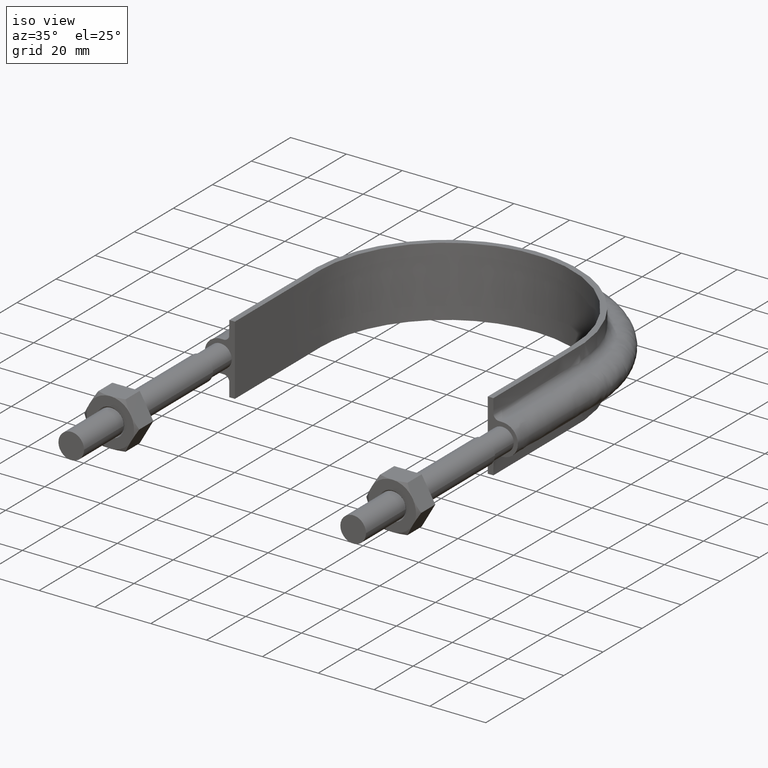
[diagram: clean part render]
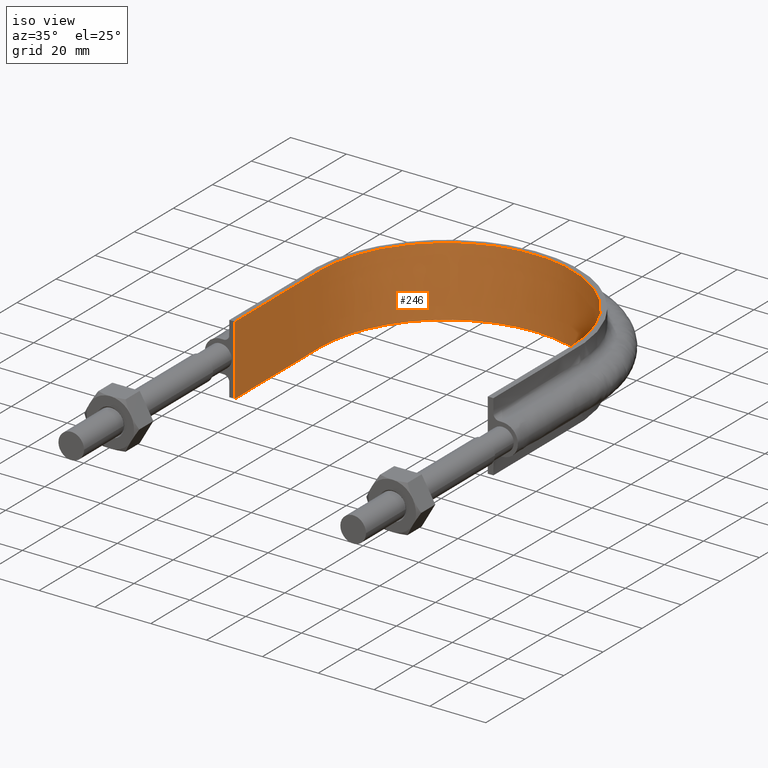
[diagram: tour spotlight — one face highlighted and labeled with its STEP entity id]
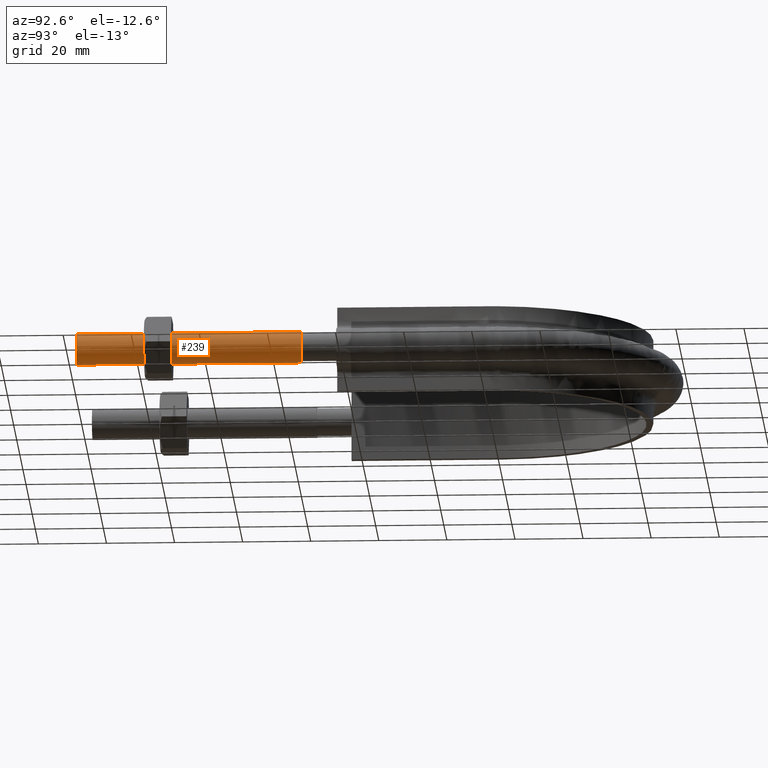
[diagram: tour spotlight — one face highlighted and labeled with its STEP entity id]
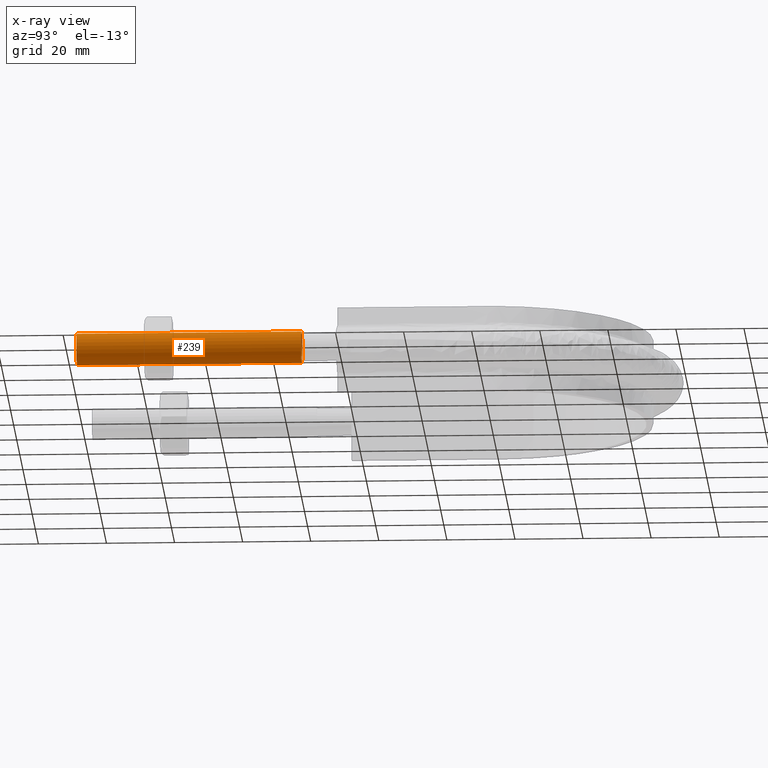
[diagram: x-ray of the same camera — body ghosted, this tour face saturated]
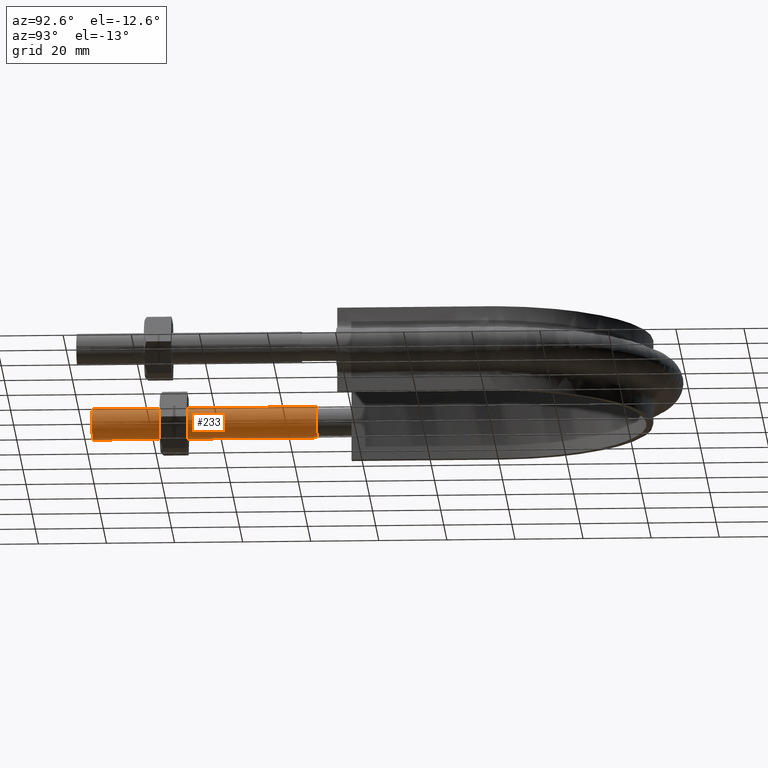
[diagram: tour spotlight — one face highlighted and labeled with its STEP entity id]
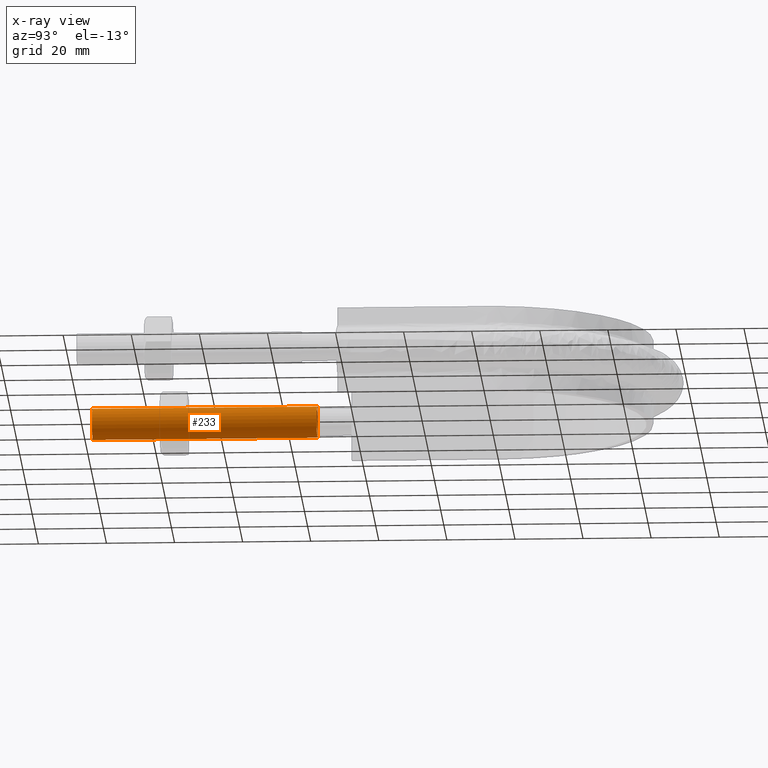
[diagram: x-ray of the same camera — body ghosted, this tour face saturated]
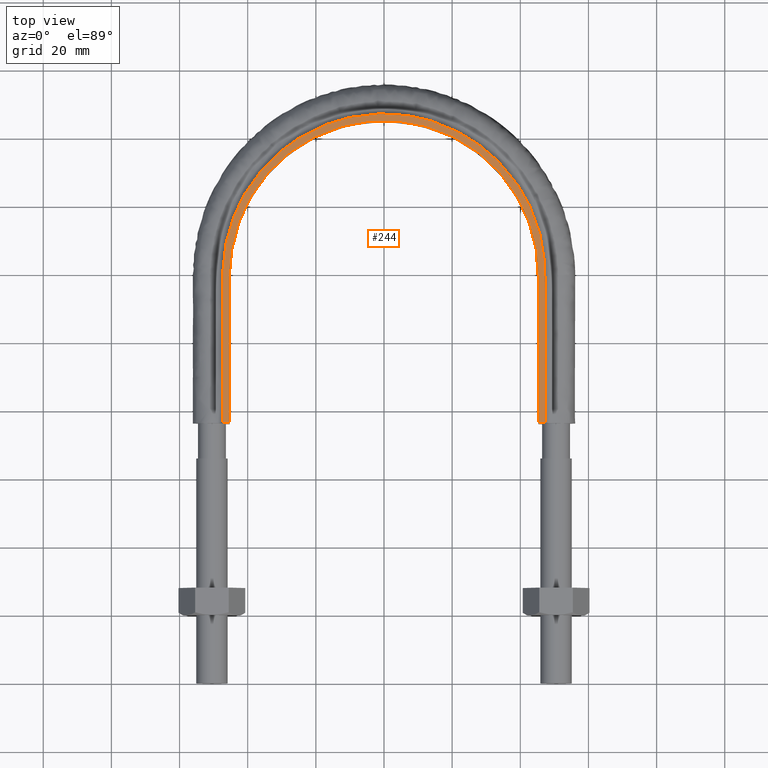
[diagram: tour spotlight — one face highlighted and labeled with its STEP entity id]
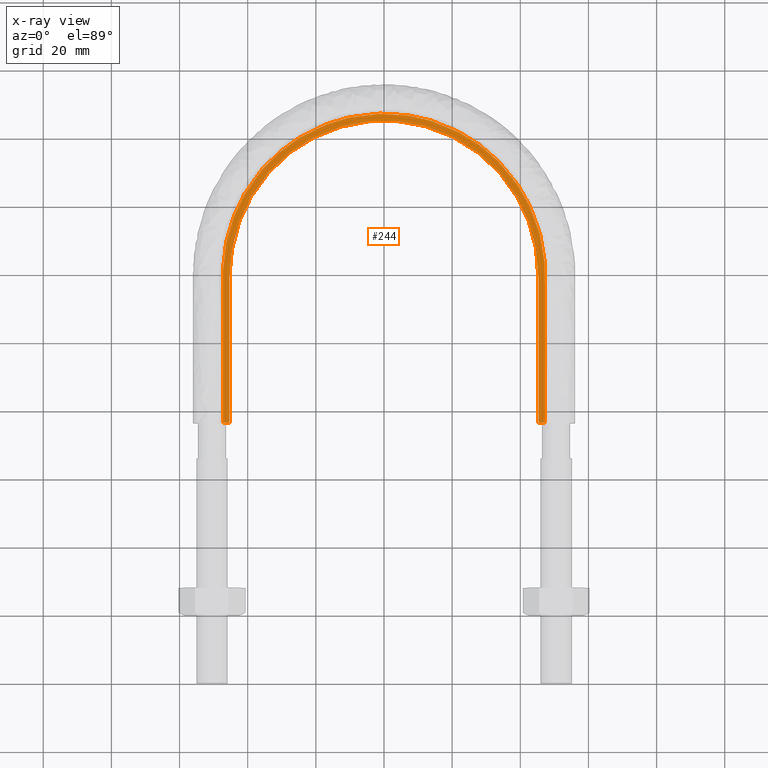
[diagram: x-ray of the same camera — body ghosted, this tour face saturated]
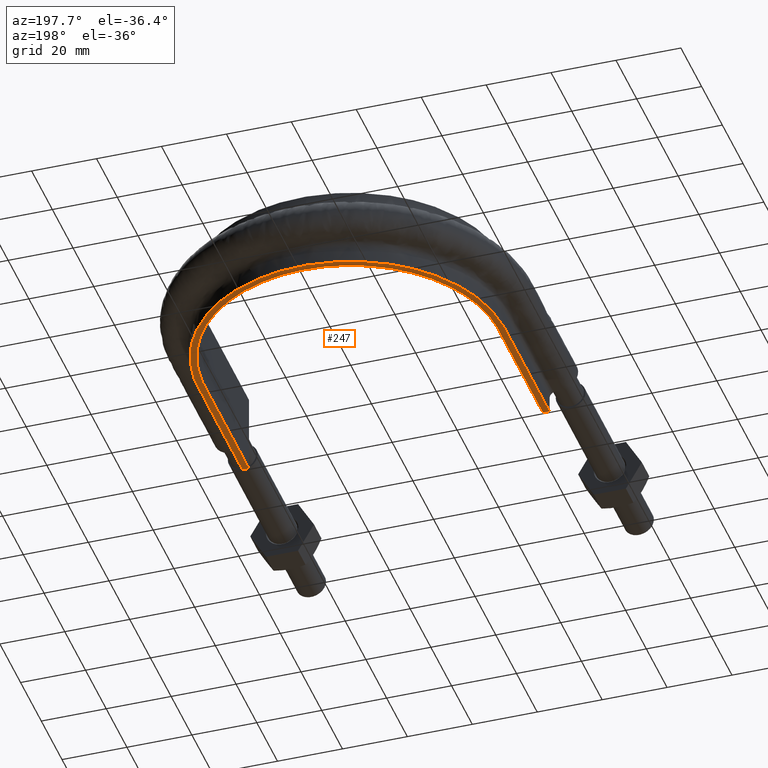
[diagram: tour spotlight — one face highlighted and labeled with its STEP entity id]
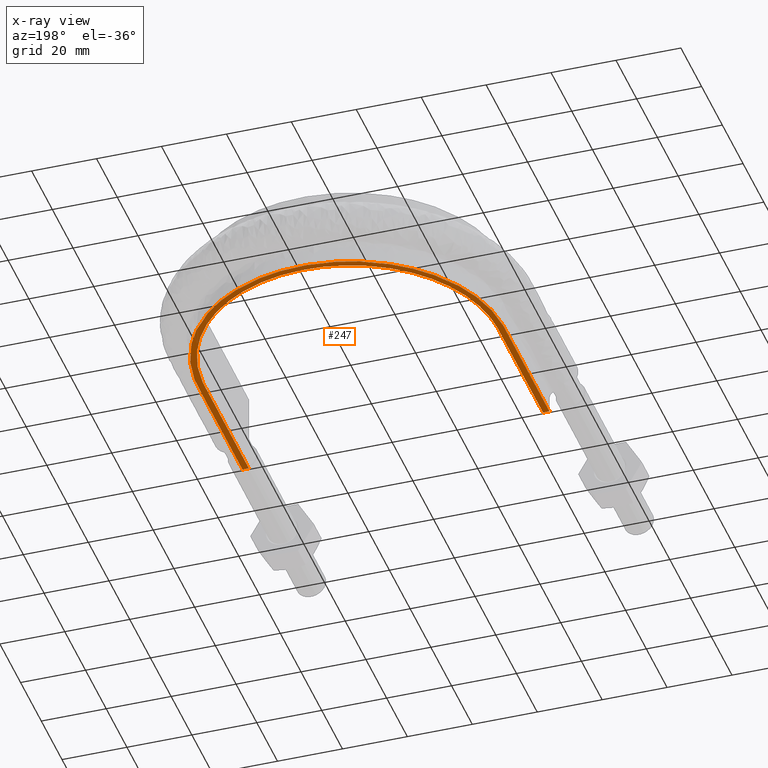
[diagram: x-ray of the same camera — body ghosted, this tour face saturated]
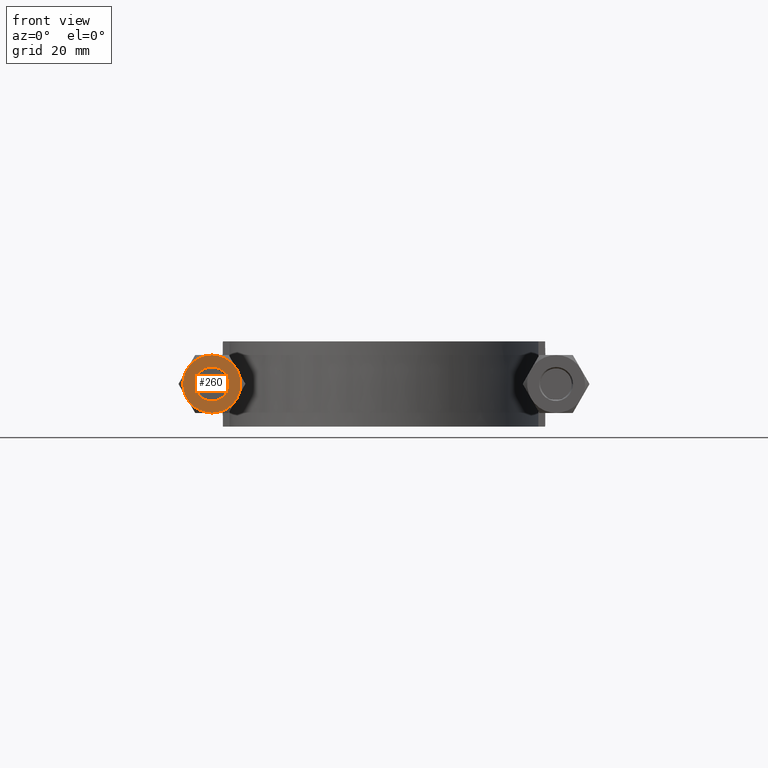
[diagram: tour spotlight — one face highlighted and labeled with its STEP entity id]
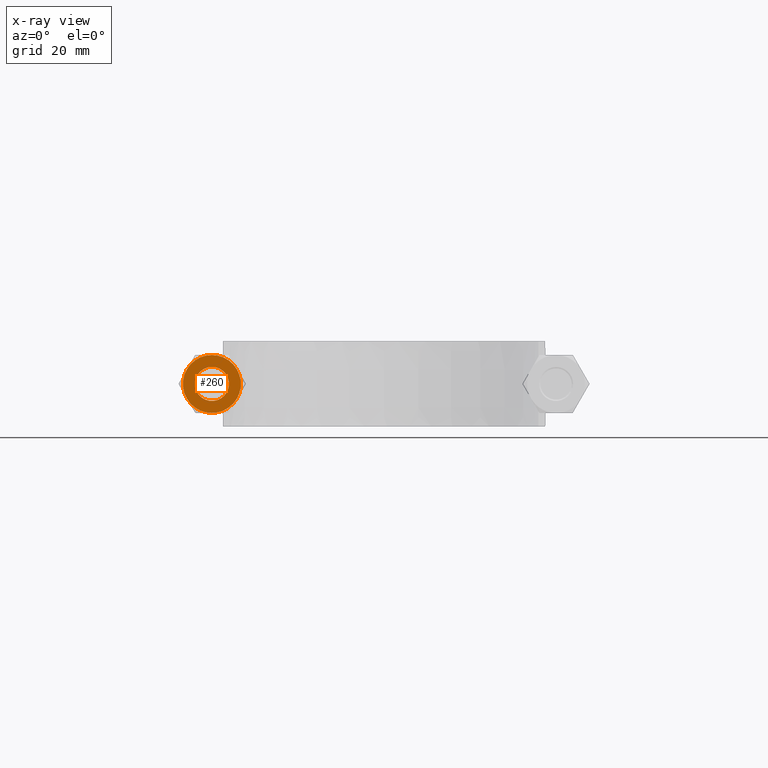
[diagram: x-ray of the same camera — body ghosted, this tour face saturated]
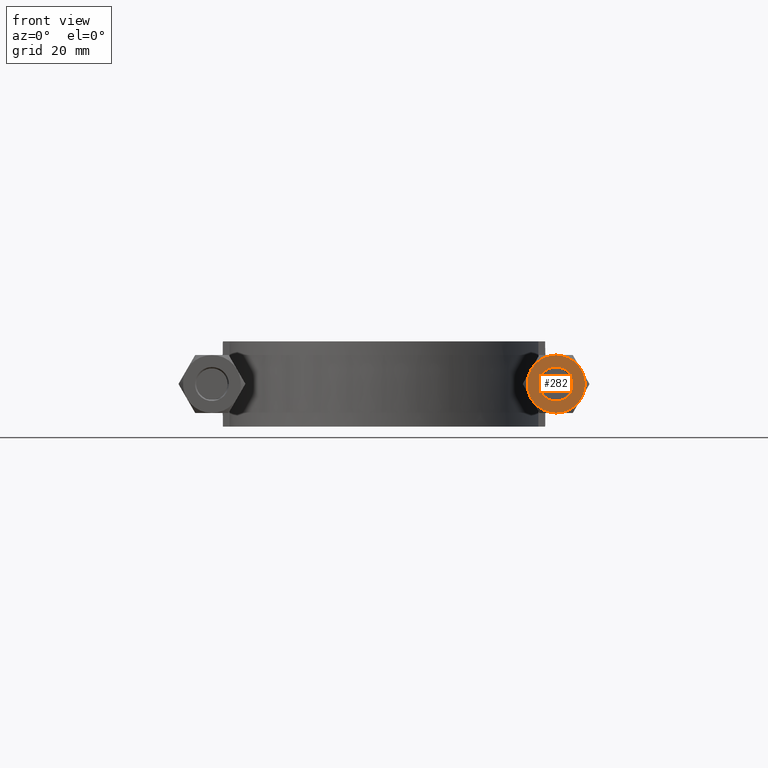
[diagram: tour spotlight — one face highlighted and labeled with its STEP entity id]
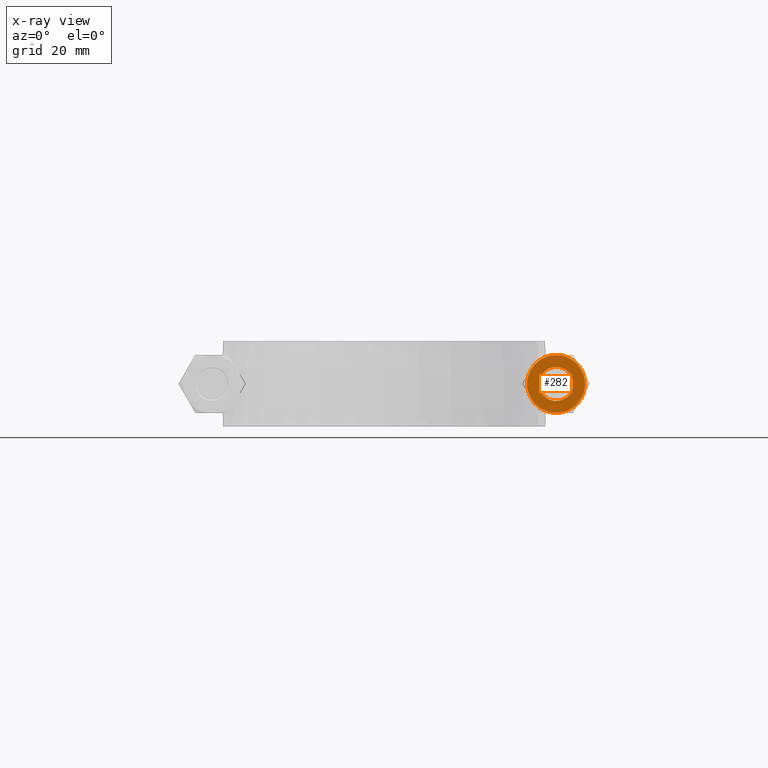
[diagram: x-ray of the same camera — body ghosted, this tour face saturated]
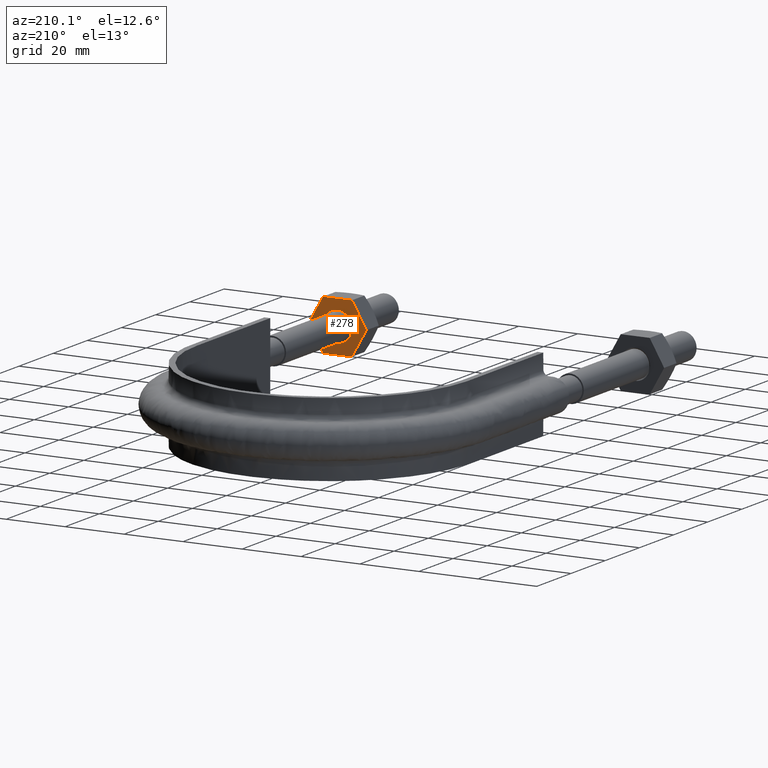
[diagram: tour spotlight — one face highlighted and labeled with its STEP entity id]
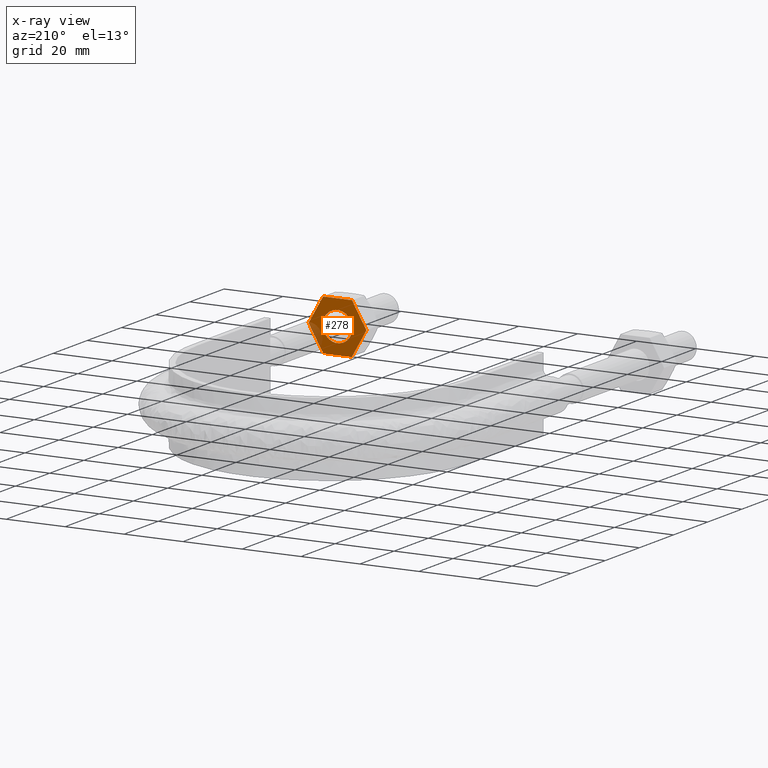
[diagram: x-ray of the same camera — body ghosted, this tour face saturated]
A machine part: a face-by-face anatomy tour. The part has 76 B-rep faces; the first image is the clean iso view, then the 8 largest visible faces are spotlighted one at a time (largest first), each with its STEP entity span.

Face 1 — iso view, entity #246. In plain terms, the highlighted face is a SurfaceOfExtrusion surface.
Definition (entity closure, byte-faithful):
#246 = ADVANCED_FACE( '', ( #359 ), #360, .T. );
#359 = FACE_OUTER_BOUND( '', #1185, .T. );
#360 = SURFACE_OF_LINEAR_EXTRUSION( '', #1186, #1187 );
#1185 = EDGE_LOOP( '', ( #1615, #1616, #1617, #1618 ) );
#1186 = B_SPLINE_CURVE_WITH_KNOTS( '', 3, ( #1619, #1620, #1621, #1622, #1623, #1624, #1625, #1626, #1627, #1628, #1629, #1630, #1631, #1632, #1633, #1634 ), .UNSPECIFIED., .F., .F., ( 4, 3, 1, 1, 1, 1, 1, 1, 3, 4 ), ( -8.93133047210300, -8.00000000000000, -7.00000000000000, -6.00000000000000, -5.00000000000000, -4.00000000000000, -3.00000000000000, -2.00000000000000, -1.00000000000000, -0.0686695278969956 ), .UNSPECIFIED. );
#1187 = VECTOR( '', #1635, 1000.00000000000 );
#1615 = ORIENTED_EDGE( '', *, *, #2025, .T. );
#1616 = ORIENTED_EDGE( '', *, *, #2038, .T. );
#1617 = ORIENTED_EDGE( '', *, *, #2035, .F. );
#1618 = ORIENTED_EDGE( '', *, *, #2033, .T. );
#1619 = CARTESIAN_POINT( '', ( 45.3000000000000, 76.3000000000000, 12.5000100000910 ) );
#1620 = CARTESIAN_POINT( '', ( 45.3000000000000, 90.7666666666667, 12.5000100000910 ) );
#1621 = CARTESIAN_POINT( '', ( 45.3000000000000, 105.233333333333, 12.5000100000910 ) );
#1622 = CARTESIAN_POINT( '', ( 45.3000000000000, 119.700000000000, 12.5000100000910 ) );
#1623 = CARTESIAN_POINT( '', ( 45.3000000000000, 126.461794206864, 12.5000100000910 ) );
#1624 = CARTESIAN_POINT( '', ( 42.2071641315033, 140.032157601825, 12.5000100000910 ) );
#1625 = CARTESIAN_POINT( '', ( 29.2082638356160, 156.324357375469, 12.5000100000910 ) );
#1626 = CARTESIAN_POINT( '', ( 10.4243086712368, 165.372209831110, 12.5000100000910 ) );
#1627 = CARTESIAN_POINT( '', ( -10.4243086712367, 165.372209831110, 12.5000100000910 ) );
#1628 = CARTESIAN_POINT( '', ( -29.2082638356159, 156.324357375469, 12.5000100000910 ) );
#1629 = CARTESIAN_POINT( '', ( -42.2071641315033, 140.032157601825, 12.5000100000910 ) );
#1630 = CARTESIAN_POINT( '', ( -45.3000000000000, 126.461794206864, 12.5000100000910 ) );
#1631 = CARTESIAN_POINT( '', ( -45.3000000000000, 119.700000000000, 12.5000100000910 ) );
#1632 = CARTESIAN_POINT( '', ( -45.3000000000000, 105.233333333333, 12.5000100000910 ) );
#1633 = CARTESIAN_POINT( '', ( -45.3000000000000, 90.7666666666667, 12.5000100000910 ) );
#1634 = CARTESIAN_POINT( '', ( -45.3000000000000, 76.3000000000000, 12.5000100000910 ) );
#1635 = DIRECTION( '', ( 0.000000000000000, 0.000000000000000, -1.00000000000000 ) );
#2025 = EDGE_CURVE( '', #2197, #2198, #2199, .T. );
#2033 = EDGE_CURVE( '', #2212, #2197, #2213, .T. );
#2035 = EDGE_CURVE( '', #2212, #2215, #2216, .T. );
#2038 = EDGE_CURVE( '', #2198, #2215, #2220, .F. );
#2197 = VERTEX_POINT( '', #2489 );
#2198 = VERTEX_POINT( '', #2490 );
#2199 = LINE( '', #2491, #2492 );
#2212 = VERTEX_POINT( '', #2606 );
#2213 = B_SPLINE_CURVE_WITH_KNOTS( '', 3, ( #2607, #2608, #2609, #2610, #2611, #2612, #2613, #2614, #2615, #2616, #2617, #2618, #2619, #2620, #2621, #2622, #2623, #2624, #2625, #2626, #2627, #2628, #2629, #2630, #2631, #2632, #2633, #2634, #2635, #2636, #2637, #2638, #2639, #2640, #2641, #2642, #2643, #2644, #2645, #2646, #2647, #2648, #2649, #2650, #2651, #2652, #2653, #2654, #2655, #2656, #2657, #2658, #2659, #2660, #2661, #2662, #2663, #2664, #2665, #2666, #2667, #2668, #2669, #2670, #2671, #2672, #2673, #2674, #2675, #2676, #2677, #2678, #2679, #2680, #2681, #2682, #2683, #2684, #2685, #2686, #2687, #2688, #2689, #2690 ), .UNSPECIFIED., .F., .F., ( 4, 1, 2, 2, 2, 2, 2, 2, 2, 2, 2, 2, 2, 2, 2, 2, 2, 2, 2, 2, 2, 2, 2, 2, 2, 2, 2, 2, 2, 2, 2, 2, 2, 2, 2, 2, 2, 2, 2, 2, 2, 1, 4 ), ( 0.000000000000000, 0.0287543779946544, 0.0431315669919816, 0.0440301413043146, 0.0449287156166475, 0.0467258642413134, 0.0503201614906452, 0.0575087559893089, 0.0611030532386408, 0.0629002018633068, 0.0646973504879727, 0.0718859449866363, 0.0754802422359681, 0.0790745394852999, 0.0862631339839634, 0.0898574312332952, 0.0916545798579611, 0.0934517284826270, 0.100640322981290, 0.107828917479954, 0.111423214729286, 0.115017511978618, 0.122206106477281, 0.124003255101947, 0.125800403726613, 0.129394700975945, 0.136583295474608, 0.138380444099274, 0.140177592723940, 0.143771889973272, 0.150960484471935, 0.154554781721267, 0.158149078970599, 0.165337673469262, 0.168931970718594, 0.170729119343260, 0.172526267967926, 0.179714862466589, 0.183309159715921, 0.185106308340587, 0.186903456965253, 0.201280645962581, 0.230035023957236 ), .UNSPECIFIED. );
#2215 = VERTEX_POINT( '', #2693 );
#2216 = LINE( '', #2694, #2695 );
#2220 = B_SPLINE_CURVE_WITH_KNOTS( '', 3, ( #2709, #2710, #2711, #2712, #2713, #2714, #2715, #2716, #2717, #2718, #2719, #2720, #2721, #2722, #2723, #2724 ), .UNSPECIFIED., .F., .F., ( 4, 3, 1, 1, 1, 1, 1, 1, 3, 4 ), ( -8.93133047210300, -8.00000000000000, -7.00000000000000, -6.00000000000000, -5.00000000000000, -4.00000000000000, -3.00000000000000, -2.00000000000000, -1.00000000000000, -0.0686695278969956 ), .UNSPECIFIED. );
#2489 = CARTESIAN_POINT( '', ( -45.3000000000000, 76.3000000000000, 12.5000000000000 ) );
#2490 = CARTESIAN_POINT( '', ( -45.3000000000000, 76.3000000000000, -12.5000000000000 ) );
#2491 = CARTESIAN_POINT( '', ( -45.3000000000000, 76.3000000000000, 12.5000100000910 ) );
#2492 = VECTOR( '', #3113, 1000.00000000000 );
#2606 = CARTESIAN_POINT( '', ( 45.3000000000000, 76.3000000000000, 12.5000000000000 ) );
#2607 = CARTESIAN_POINT( '', ( 45.3000000000000, 76.3000000000000, 12.5000000000000 ) );
#2608 = CARTESIAN_POINT( '', ( 45.3000000000000, 85.8848205646283, 12.5000000000000 ) );
#2609 = CARTESIAN_POINT( '', ( 45.3000000000000, 100.262051411571, 12.5000000000000 ) );
#2610 = CARTESIAN_POINT( '', ( 45.3000000000000, 114.639282258513, 12.5000000000000 ) );
#2611 = CARTESIAN_POINT( '', ( 45.3000000000000, 119.731218183472, 12.5000000000000 ) );
#2612 = CARTESIAN_POINT( '', ( 45.2997760120249, 120.030743285675, 12.5000000000000 ) );
#2613 = CARTESIAN_POINT( '', ( 45.2912777717044, 120.629774066281, 12.5000000000000 ) );
#2614 = CARTESIAN_POINT( '', ( 45.2840050595566, 120.929282161215, 12.5000000000000 ) );
#2615 = CARTESIAN_POINT( '', ( 45.2531480099003, 121.827784636791, 12.5000000000000 ) );
#2616 = CARTESIAN_POINT( '', ( 45.2204957104833, 122.427200024519, 12.5000000000000 ) );
#2617 = CARTESIAN_POINT( '', ( 45.0866957945141, 124.222494949273, 12.5000000000000 ) );
#2618 = CARTESIAN_POINT( '', ( 44.9504291017170, 125.407906322015, 12.5000000000000 ) );
#2619 = CARTESIAN_POINT( '', ( 44.4061177465217, 128.931168904230, 12.5000000000000 ) );
#2620 = CARTESIAN_POINT( '', ( 43.8636822485659, 131.236321194623, 12.5000000000000 ) );
#2621 = CARTESIAN_POINT( '', ( 42.7815683609983, 134.628729902663, 12.5000000000000 ) );
#2622 = CARTESIAN_POINT( '', ( 42.3758385758422, 135.748577639201, 12.5000000000000 ) );
#2623 = CARTESIAN_POINT( '', ( 41.6971261299260, 137.411288741198, 12.5000000000000 ) );
#2624 = CARTESIAN_POINT( '', ( 41.4587485176160, 137.963522487295, 12.5000000000000 ) );
#2625 = CARTESIAN_POINT( '', ( 40.9623939009448, 139.052686028662, 12.5000000000000 ) );
#2626 = CARTESIAN_POINT( '', ( 40.7040140940422, 139.590633634307, 12.5000000000000 ) );
#2627 = CARTESIAN_POINT( '', ( 39.3618284958927, 142.247672872113, 12.5000000000000 ) );
#2628 = CARTESIAN_POINT( '', ( 38.1287732829049, 144.269715209024, 12.5000000000000 ) );
#2629 = CARTESIAN_POINT( '', ( 36.0483927303406, 147.152702706861, 12.5000000000000 ) );
#2630 = CARTESIAN_POINT( '', ( 35.3162279376428, 148.088530904417, 12.5000000000000 ) );
#2631 = CARTESIAN_POINT( '', ( 33.7729613787723, 149.908858607226, 12.5000000000000 ) );
#2632 = CARTESIAN_POINT( '', ( 32.9584983694080, 150.796352407073, 12.5000000000000 ) );
#2633 = CARTESIAN_POINT( '', ( 30.4343658146005, 153.337344556213, 12.5000000000000 ) );
#2634 = CARTESIAN_POINT( '', ( 28.6360692622387, 154.881493975360, 12.5000000000000 ) );
#2635 = CARTESIAN_POINT( '', ( 25.7668653719943, 156.974964438366, 12.5000000000000 ) );
#2636 = CARTESIAN_POINT( '', ( 24.7819445161321, 157.635801019642, 12.5000000000000 ) );
#2637 = CARTESIAN_POINT( '', ( 23.2616146962021, 158.571356100425, 12.5000000000000 ) );
#2638 = CARTESIAN_POINT( '', ( 22.7476691870377, 158.873910471946, 12.5000000000000 ) );
#2639 = CARTESIAN_POINT( '', ( 21.7052773821733, 159.460213200769, 12.5000000000000 ) );
#2640 = CARTESIAN_POINT( '', ( 21.1756556167053, 159.744537298346, 12.5000000000000 ) );
#2641 = CARTESIAN_POINT( '', ( 18.5103111801555, 161.108501344270, 12.5000000000000 ) );
#2642 = CARTESIAN_POINT( '', ( 16.3185331092020, 162.020394560135, 12.5000000000000 ) );
#2643 = CARTESIAN_POINT( '', ( 11.8189661583874, 163.494646423883, 12.5000000000000 ) );
#2644 = CARTESIAN_POINT( '', ( 9.51076198777621, 164.055753822214, 12.5000000000000 ) );
#2645 = CARTESIAN_POINT( '', ( 5.95662532797862, 164.620734661634, 12.5000000000000 ) );
#2646 = CARTESIAN_POINT( '', ( 4.76788785050957, 164.761147485507, 12.5000000000000 ) );
#2647 = CARTESIAN_POINT( '', ( 2.39647070391252, 164.947851083060, 12.5000000000000 ) );
#2648 = CARTESIAN_POINT( '', ( 1.21153117527859, 164.994499013257, 12.5000000000000 ) );
#2649 = CARTESIAN_POINT( '', ( -2.34101805316253, 164.996625356462, 12.5000000000000 ) );
#2650 = CARTESIAN_POINT( '', ( -4.70637779815004, 164.815464639074, 12.5000000000000 ) );
#2651 = CARTESIAN_POINT( '', ( -7.65915858277227, 164.351020241084, 12.5000000000000 ) );
#2652 = CARTESIAN_POINT( '', ( -8.25083455194662, 164.245862246466, 12.5000000000000 ) );
#2653 = CARTESIAN_POINT( '', ( -9.42653190172392, 164.012409776832, 12.5000000000000 ) );
#2654 = CARTESIAN_POINT( '', ( -10.0101476162836, 163.884250803394, 12.5000000000000 ) );
#2655 = CARTESIAN_POINT( '', ( -11.7484468334342, 163.465883377835, 12.5000000000000 ) );
#2656 = CARTESIAN_POINT( '', ( -12.8906527223969, 163.141974327520, 12.5000000000000 ) );
#2657 = CARTESIAN_POINT( '', ( -16.2689101217008, 162.039631660257, 12.5000000000000 ) );
#2658 = CARTESIAN_POINT( '', ( -18.4569925447982, 161.131639060066, 12.5000000000000 ) );
#2659 = CARTESIAN_POINT( '', ( -21.1113012403399, 159.778432115202, 12.5000000000000 ) );
#2660 = CARTESIAN_POINT( '', ( -21.6380918925233, 159.496795189040, 12.5000000000000 ) );
#2661 = CARTESIAN_POINT( '', ( -22.6833837807200, 158.911132577781, 12.5000000000000 ) );
#2662 = CARTESIAN_POINT( '', ( -23.2017061819432, 158.607128404409, 12.5000000000000 ) );
#2663 = CARTESIAN_POINT( '', ( -24.7303471350012, 157.669564342871, 12.5000000000000 ) );
#2664 = CARTESIAN_POINT( '', ( -25.7191011998732, 157.007938274698, 12.5000000000000 ) );
#2665 = CARTESIAN_POINT( '', ( -28.5955069273408, 154.914712609781, 12.5000000000000 ) );
#2666 = CARTESIAN_POINT( '', ( -30.3928386158799, 153.374206663575, 12.5000000000000 ) );
#2667 = CARTESIAN_POINT( '', ( -32.9098802473355, 150.847665641424, 12.5000000000000 ) );
#2668 = CARTESIAN_POINT( '', ( -33.7201063858692, 149.968144324298, 12.5000000000000 ) );
#2669 = CARTESIAN_POINT( '', ( -35.2745676507393, 148.140548074671, 12.5000000000000 ) );
#2670 = CARTESIAN_POINT( '', ( -36.0108033379542, 147.202093103808, 12.5000000000000 ) );
#2671 = CARTESIAN_POINT( '', ( -38.0999731742671, 144.314831254988, 12.5000000000000 ) );
#2672 = CARTESIAN_POINT( '', ( -39.3343184899538, 142.294697861215, 12.5000000000000 ) );
#2673 = CARTESIAN_POINT( '', ( -40.9440306770637, 139.119061107137, 12.5000000000000 ) );
#2674 = CARTESIAN_POINT( '', ( -41.4398476877741, 138.036003764877, 12.5000000000000 ) );
#2675 = CARTESIAN_POINT( '', ( -42.1215319712500, 136.374102391935, 12.5000000000000 ) );
#2676 = CARTESIAN_POINT( '', ( -42.3385970417913, 135.813283805220, 12.5000000000000 ) );
#2677 = CARTESIAN_POINT( '', ( -42.7483267135284, 134.689073533850, 12.5000000000000 ) );
#2678 = CARTESIAN_POINT( '', ( -42.9414928116360, 134.124536114339, 12.5000000000000 ) );
#2679 = CARTESIAN_POINT( '', ( -43.8499727665167, 131.289925270555, 12.5000000000000 ) );
#2680 = CARTESIAN_POINT( '', ( -44.3947073189255, 128.984386713933, 12.5000000000000 ) );
#2681 = CARTESIAN_POINT( '', ( -44.9423619636432, 125.470058132087, 12.5000000000000 ) );
#2682 = CARTESIAN_POINT( '', ( -45.0797192826280, 124.289218942135, 12.5000000000000 ) );
#2683 = CARTESIAN_POINT( '', ( -45.2157289936545, 122.503401000382, 12.5000000000000 ) );
#2684 = CARTESIAN_POINT( '', ( -45.2493799141445, 121.905563911382, 12.5000000000000 ) );
#2685 = CARTESIAN_POINT( '', ( -45.2926573150340, 120.705446197623, 12.5000000000000 ) );
#2686 = CARTESIAN_POINT( '', ( -45.3000000000000, 120.105377557368, 12.5000000000000 ) );
#2687 = CARTESIAN_POINT( '', ( -45.3000000000000, 114.704714570843, 12.5000000000000 ) );
#2688 = CARTESIAN_POINT( '', ( -45.3000000000000, 100.302946606777, 12.5000000000000 ) );
#2689 = CARTESIAN_POINT( '', ( -45.3000000000000, 85.9011786427107, 12.5000000000000 ) );
#2690 = CARTESIAN_POINT( '', ( -45.3000000000000, 76.3000000000001, 12.5000000000000 ) );
#2693 = CARTESIAN_POINT( '', ( 45.3000000000000, 76.3000000000000, -12.5000000000000 ) );
#2694 = CARTESIAN_POINT( '', ( 45.3000000000000, 76.3000000000000, 12.5000100000910 ) );
#2695 = VECTOR( '', #3117, 1000.00000000000 );
#2709 = CARTESIAN_POINT( '', ( 45.3000000000000, 76.3000000000000, -12.5000000000000 ) );
#2710 = CARTESIAN_POINT( '', ( 45.3000000000000, 90.7666666666667, -12.5000000000000 ) );
#2711 = CARTESIAN_POINT( '', ( 45.3000000000000, 105.233333333333, -12.5000000000000 ) );
#2712 = CARTESIAN_POINT( '', ( 45.3000000000000, 119.700000000000, -12.5000000000000 ) );
#2713 = CARTESIAN_POINT( '', ( 45.3000000000000, 126.461794206864, -12.5000000000000 ) );
#2714 = CARTESIAN_POINT( '', ( 42.2071641315033, 140.032157601825, -12.5000000000000 ) );
#2715 = CARTESIAN_POINT( '', ( 29.2082638356160, 156.324357375469, -12.5000000000000 ) );
#2716 = CARTESIAN_POINT( '', ( 10.4243086712368, 165.372209831110, -12.5000000000000 ) );
#2717 = CARTESIAN_POINT( '', ( -10.4243086712367, 165.372209831110, -12.5000000000000 ) );
#2718 = CARTESIAN_POINT( '', ( -29.2082638356159, 156.324357375469, -12.5000000000000 ) );
#2719 = CARTESIAN_POINT( '', ( -42.2071641315033, 140.032157601825, -12.5000000000000 ) );
#2720 = CARTESIAN_POINT( '', ( -45.3000000000000, 126.461794206864, -12.5000000000000 ) );
#2721 = CARTESIAN_POINT( '', ( -45.3000000000000, 119.700000000000, -12.5000000000000 ) );
#2722 = CARTESIAN_POINT( '', ( -45.3000000000000, 105.233333333333, -12.5000000000000 ) );
#2723 = CARTESIAN_POINT( '', ( -45.3000000000000, 90.7666666666667, -12.5000000000000 ) );
#2724 = CARTESIAN_POINT( '', ( -45.3000000000000, 76.3000000000000, -12.5000000000000 ) );
#3113 = DIRECTION( '', ( 0.000000000000000, 0.000000000000000, -1.00000000000000 ) );
#3117 = DIRECTION( '', ( 0.000000000000000, 0.000000000000000, -1.00000000000000 ) );

Face 2 — auxiliary view, entity #239. An x-ray twin of the same camera follows (body ghosted, this face saturated) — the face is partly hidden behind the body. In plain terms, the highlighted cylindrical surface (bore or boss wall) has radius 4.6 mm, axis along (-0, -1, -0).
Definition (entity closure, byte-faithful):
#239 = ADVANCED_FACE( '', ( #342, #343 ), #344, .T. );
#342 = FACE_OUTER_BOUND( '', #673, .T. );
#343 = FACE_OUTER_BOUND( '', #674, .T. );
#344 = CYLINDRICAL_SURFACE( '', #675, 4.60000000000000 );
#673 = EDGE_LOOP( '', ( #1573 ) );
#674 = EDGE_LOOP( '', ( #1574 ) );
#675 = AXIS2_PLACEMENT_3D( '', #1575, #1576, #1577 );
#1573 = ORIENTED_EDGE( '', *, *, #2023, .F. );
#1574 = ORIENTED_EDGE( '', *, *, #2024, .T. );
#1575 = CARTESIAN_POINT( '', ( 50.5000000000000, 66.0000000000000, 4.09630825353585E-015 ) );
#1576 = DIRECTION( '', ( -2.44921270764475E-016, -1.00000000000000, -6.12303176911189E-017 ) );
#1577 = DIRECTION( '', ( 1.00000000000000, -2.44921270764475E-016, -7.49830360911069E-033 ) );
#2023 = EDGE_CURVE( '', #2193, #2193, #2194, .T. );
#2024 = EDGE_CURVE( '', #2195, #2195, #2196, .T. );
#2193 = VERTEX_POINT( '', #2485 );
#2194 = CIRCLE( '', #2486, 4.60000000000000 );
#2195 = VERTEX_POINT( '', #2487 );
#2196 = CIRCLE( '', #2488, 4.60000000000000 );
#2485 = CARTESIAN_POINT( '', ( 55.1000000000000, -1.34951620191226E-014, 5.51072859220066E-017 ) );
#2486 = AXIS2_PLACEMENT_3D( '', #3107, #3108, #3109 );
#2487 = CARTESIAN_POINT( '', ( 55.1000000000000, 66.0000000000000, 4.09630825353585E-015 ) );
#2488 = AXIS2_PLACEMENT_3D( '', #3110, #3111, #3112 );
#3107 = CARTESIAN_POINT( '', ( 50.5000000000000, -1.23685241736060E-014, 5.51072859220066E-017 ) );
#3108 = DIRECTION( '', ( -2.44921270764476E-016, -1.00000000000000, -6.12303176911189E-017 ) );
#3109 = DIRECTION( '', ( 1.00000000000000, -2.44921270764476E-016, -7.49830360911070E-033 ) );
#3110 = CARTESIAN_POINT( '', ( 50.5000000000000, 66.0000000000000, 4.09630825353585E-015 ) );
#3111 = DIRECTION( '', ( -2.44921270764476E-016, -1.00000000000000, -6.12303176911189E-017 ) );
#3112 = DIRECTION( '', ( 1.00000000000000, -2.44921270764476E-016, -7.49830360911070E-033 ) );

Face 3 — auxiliary view, entity #233. An x-ray twin of the same camera follows (body ghosted, this face saturated) — the face is partly hidden behind the body. In plain terms, the highlighted cylindrical surface (bore or boss wall) has radius 4.6 mm, axis along (-0, -1, -0).
Definition (entity closure, byte-faithful):
#233 = ADVANCED_FACE( '', ( #327, #328 ), #329, .T. );
#327 = FACE_OUTER_BOUND( '', #658, .T. );
#328 = FACE_OUTER_BOUND( '', #659, .T. );
#329 = CYLINDRICAL_SURFACE( '', #660, 4.60000000000000 );
#658 = EDGE_LOOP( '', ( #1544 ) );
#659 = EDGE_LOOP( '', ( #1545 ) );
#660 = AXIS2_PLACEMENT_3D( '', #1546, #1547, #1548 );
#1544 = ORIENTED_EDGE( '', *, *, #2021, .F. );
#1545 = ORIENTED_EDGE( '', *, *, #2022, .T. );
#1546 = CARTESIAN_POINT( '', ( -50.5000000000000, 66.0000000000000, 4.09630825353585E-015 ) );
#1547 = DIRECTION( '', ( -2.44921270764475E-016, -1.00000000000000, -6.12303176911189E-017 ) );
#1548 = DIRECTION( '', ( 1.00000000000000, -2.44921270764475E-016, -7.49830360911069E-033 ) );
#2021 = EDGE_CURVE( '', #2189, #2189, #2190, .T. );
#2022 = EDGE_CURVE( '', #2191, #2191, #2192, .T. );
#2189 = VERTEX_POINT( '', #2481 );
#2190 = CIRCLE( '', #2482, 4.60000000000000 );
#2191 = VERTEX_POINT( '', #2483 );
#2192 = CIRCLE( '', #2484, 4.60000000000000 );
#2481 = CARTESIAN_POINT( '', ( -45.9000000000000, 1.12418863280894E-014, 5.51072859220073E-017 ) );
#2482 = AXIS2_PLACEMENT_3D( '', #3101, #3102, #3103 );
#2483 = CARTESIAN_POINT( '', ( -45.9000000000000, 66.0000000000000, 4.09630825353585E-015 ) );
#2484 = AXIS2_PLACEMENT_3D( '', #3104, #3105, #3106 );
#3101 = CARTESIAN_POINT( '', ( -50.5000000000000, 1.23685241736060E-014, 5.51072859220074E-017 ) );
#3102 = DIRECTION( '', ( -2.44921270764475E-016, -1.00000000000000, -6.12303176911189E-017 ) );
#3103 = DIRECTION( '', ( 1.00000000000000, -2.44921270764475E-016, -1.01150562509412E-032 ) );
#3104 = CARTESIAN_POINT( '', ( -50.5000000000000, 66.0000000000000, 4.09630825353585E-015 ) );
#3105 = DIRECTION( '', ( -2.44921270764475E-016, -1.00000000000000, -6.12303176911189E-017 ) );
#3106 = DIRECTION( '', ( 1.00000000000000, -2.44921270764475E-016, -1.01150562509412E-032 ) );

Face 4 — top view, entity #244. An x-ray twin of the same camera follows (body ghosted, this face saturated) — the face is partly hidden behind the body. In plain terms, the highlighted planar face has unit normal (0, 0, 1).
Definition (entity closure, byte-faithful):
#244 = ADVANCED_FACE( '', ( #354 ), #355, .T. );
#354 = FACE_OUTER_BOUND( '', #1180, .T. );
#355 = PLANE( '', #1181 );
#1180 = EDGE_LOOP( '', ( #1600, #1601, #1602, #1603 ) );
#1181 = AXIS2_PLACEMENT_3D( '', #1604, #1605, #1606 );
#1600 = ORIENTED_EDGE( '', *, *, #2026, .T. );
#1601 = ORIENTED_EDGE( '', *, *, #2033, .F. );
#1602 = ORIENTED_EDGE( '', *, *, #2034, .T. );
#1603 = ORIENTED_EDGE( '', *, *, #2031, .F. );
#1604 = CARTESIAN_POINT( '', ( 60.0000000000000, 186.300000000000, 12.5000000000000 ) );
#1605 = DIRECTION( '', ( 0.000000000000000, 0.000000000000000, 1.00000000000000 ) );
#1606 = DIRECTION( '', ( 1.00000000000000, 0.000000000000000, 0.000000000000000 ) );
#2026 = EDGE_CURVE( '', #2200, #2197, #2201, .F. );
#2031 = EDGE_CURVE( '', #2200, #2209, #2210, .T. );
#2033 = EDGE_CURVE( '', #2212, #2197, #2213, .T. );
#2034 = EDGE_CURVE( '', #2212, #2209, #2214, .F. );
#2197 = VERTEX_POINT( '', #2489 );
#2200 = VERTEX_POINT( '', #2493 );
#2201 = LINE( '', #2494, #2495 );
#2209 = VERTEX_POINT( '', #2558 );
#2210 = B_SPLINE_CURVE_WITH_KNOTS( '', 3, ( #2559, #2560, #2561, #2562, #2563, #2564, #2565, #2566, #2567, #2568, #2569, #2570, #2571, #2572, #2573, #2574 ), .UNSPECIFIED., .F., .F., ( 4, 3, 1, 1, 1, 1, 1, 1, 3, 4 ), ( 0.0686695278969954, 1.00000000000000, 2.00000000000000, 3.00000000000000, 4.00000000000000, 5.00000000000000, 6.00000000000000, 7.00000000000000, 8.00000000000000, 8.93133047210300 ), .UNSPECIFIED. );
#2212 = VERTEX_POINT( '', #2606 );
#2213 = B_SPLINE_CURVE_WITH_KNOTS( '', 3, ( #2607, #2608, #2609, #2610, #2611, #2612, #2613, #2614, #2615, #2616, #2617, #2618, #2619, #2620, #2621, #2622, #2623, #2624, #2625, #2626, #2627, #2628, #2629, #2630, #2631, #2632, #2633, #2634, #2635, #2636, #2637, #2638, #2639, #2640, #2641, #2642, #2643, #2644, #2645, #2646, #2647, #2648, #2649, #2650, #2651, #2652, #2653, #2654, #2655, #2656, #2657, #2658, #2659, #2660, #2661, #2662, #2663, #2664, #2665, #2666, #2667, #2668, #2669, #2670, #2671, #2672, #2673, #2674, #2675, #2676, #2677, #2678, #2679, #2680, #2681, #2682, #2683, #2684, #2685, #2686, #2687, #2688, #2689, #2690 ), .UNSPECIFIED., .F., .F., ( 4, 1, 2, 2, 2, 2, 2, 2, 2, 2, 2, 2, 2, 2, 2, 2, 2, 2, 2, 2, 2, 2, 2, 2, 2, 2, 2, 2, 2, 2, 2, 2, 2, 2, 2, 2, 2, 2, 2, 2, 2, 1, 4 ), ( 0.000000000000000, 0.0287543779946544, 0.0431315669919816, 0.0440301413043146, 0.0449287156166475, 0.0467258642413134, 0.0503201614906452, 0.0575087559893089, 0.0611030532386408, 0.0629002018633068, 0.0646973504879727, 0.0718859449866363, 0.0754802422359681, 0.0790745394852999, 0.0862631339839634, 0.0898574312332952, 0.0916545798579611, 0.0934517284826270, 0.100640322981290, 0.107828917479954, 0.111423214729286, 0.115017511978618, 0.122206106477281, 0.124003255101947, 0.125800403726613, 0.129394700975945, 0.136583295474608, 0.138380444099274, 0.140177592723940, 0.143771889973272, 0.150960484471935, 0.154554781721267, 0.158149078970599, 0.165337673469262, 0.168931970718594, 0.170729119343260, 0.172526267967926, 0.179714862466589, 0.183309159715921, 0.185106308340587, 0.186903456965253, 0.201280645962581, 0.230035023957236 ), .UNSPECIFIED. );
#2214 = LINE( '', #2691, #2692 );
#2489 = CARTESIAN_POINT( '', ( -45.3000000000000, 76.3000000000000, 12.5000000000000 ) );
#2493 = CARTESIAN_POINT( '', ( -47.3000000000000, 76.3000000000000, 12.5000000000000 ) );
#2494 = CARTESIAN_POINT( '', ( 60.0000000000000, 76.3000000000000, 12.5000000000000 ) );
#2495 = VECTOR( '', #3114, 1000.00000000000 );
#2558 = CARTESIAN_POINT( '', ( 47.3000000000000, 76.3000000000000, 12.5000000000000 ) );
#2559 = CARTESIAN_POINT( '', ( -47.3000000000000, 76.3000000000000, 12.5000000000000 ) );
#2560 = CARTESIAN_POINT( '', ( -47.3000000000000, 90.7666666666668, 12.5000000000000 ) );
#2561 = CARTESIAN_POINT( '', ( -47.3000000000000, 105.233333333334, 12.5000000000000 ) );
#2562 = CARTESIAN_POINT( '', ( -47.3000000000000, 119.700000000000, 12.5000000000000 ) );
#2563 = CARTESIAN_POINT( '', ( -47.3000000000000, 126.766118839385, 12.5000000000000 ) );
#2564 = CARTESIAN_POINT( '', ( -44.0706150865366, 140.927141121989, 12.5000000000000 ) );
#2565 = CARTESIAN_POINT( '', ( -30.4978119078285, 157.942032975526, 12.5000000000000 ) );
#2566 = CARTESIAN_POINT( '', ( -10.8845430496578, 167.388501700335, 12.5000000000000 ) );
#2567 = CARTESIAN_POINT( '', ( 10.8845430496579, 167.388501700335, 12.5000000000000 ) );
#2568 = CARTESIAN_POINT( '', ( 30.4978119078286, 157.942032975526, 12.5000000000000 ) );
#2569 = CARTESIAN_POINT( '', ( 44.0706150865366, 140.927141121989, 12.5000000000000 ) );
#2570 = CARTESIAN_POINT( '', ( 47.3000000000000, 126.766118839385, 12.5000000000000 ) );
#2571 = CARTESIAN_POINT( '', ( 47.3000000000000, 119.700000000000, 12.5000000000000 ) );
#2572 = CARTESIAN_POINT( '', ( 47.3000000000000, 105.233333333334, 12.5000000000000 ) );
#2573 = CARTESIAN_POINT( '', ( 47.3000000000000, 90.7666666666667, 12.5000000000000 ) );
#2574 = CARTESIAN_POINT( '', ( 47.3000000000000, 76.3000000000000, 12.5000000000000 ) );
#2606 = CARTESIAN_POINT( '', ( 45.3000000000000, 76.3000000000000, 12.5000000000000 ) );
#2607 = CARTESIAN_POINT( '', ( 45.3000000000000, 76.3000000000000, 12.5000000000000 ) );
#2608 = CARTESIAN_POINT( '', ( 45.3000000000000, 85.8848205646283, 12.5000000000000 ) );
#2609 = CARTESIAN_POINT( '', ( 45.3000000000000, 100.262051411571, 12.5000000000000 ) );
#2610 = CARTESIAN_POINT( '', ( 45.3000000000000, 114.639282258513, 12.5000000000000 ) );
#2611 = CARTESIAN_POINT( '', ( 45.3000000000000, 119.731218183472, 12.5000000000000 ) );
#2612 = CARTESIAN_POINT( '', ( 45.2997760120249, 120.030743285675, 12.5000000000000 ) );
#2613 = CARTESIAN_POINT( '', ( 45.2912777717044, 120.629774066281, 12.5000000000000 ) );
#2614 = CARTESIAN_POINT( '', ( 45.2840050595566, 120.929282161215, 12.5000000000000 ) );
#2615 = CARTESIAN_POINT( '', ( 45.2531480099003, 121.827784636791, 12.5000000000000 ) );
#2616 = CARTESIAN_POINT( '', ( 45.2204957104833, 122.427200024519, 12.5000000000000 ) );
#2617 = CARTESIAN_POINT( '', ( 45.0866957945141, 124.222494949273, 12.5000000000000 ) );
#2618 = CARTESIAN_POINT( '', ( 44.9504291017170, 125.407906322015, 12.5000000000000 ) );
#2619 = CARTESIAN_POINT( '', ( 44.4061177465217, 128.931168904230, 12.5000000000000 ) );
#2620 = CARTESIAN_POINT( '', ( 43.8636822485659, 131.236321194623, 12.5000000000000 ) );
#2621 = CARTESIAN_POINT( '', ( 42.7815683609983, 134.628729902663, 12.5000000000000 ) );
#2622 = CARTESIAN_POINT( '', ( 42.3758385758422, 135.748577639201, 12.5000000000000 ) );
#2623 = CARTESIAN_POINT( '', ( 41.6971261299260, 137.411288741198, 12.5000000000000 ) );
#2624 = CARTESIAN_POINT( '', ( 41.4587485176160, 137.963522487295, 12.5000000000000 ) );
#2625 = CARTESIAN_POINT( '', ( 40.9623939009448, 139.052686028662, 12.5000000000000 ) );
#2626 = CARTESIAN_POINT( '', ( 40.7040140940422, 139.590633634307, 12.5000000000000 ) );
#2627 = CARTESIAN_POINT( '', ( 39.3618284958927, 142.247672872113, 12.5000000000000 ) );
#2628 = CARTESIAN_POINT( '', ( 38.1287732829049, 144.269715209024, 12.5000000000000 ) );
#2629 = CARTESIAN_POINT( '', ( 36.0483927303406, 147.152702706861, 12.5000000000000 ) );
#2630 = CARTESIAN_POINT( '', ( 35.3162279376428, 148.088530904417, 12.5000000000000 ) );
#2631 = CARTESIAN_POINT( '', ( 33.7729613787723, 149.908858607226, 12.5000000000000 ) );
#2632 = CARTESIAN_POINT( '', ( 32.9584983694080, 150.796352407073, 12.5000000000000 ) );
#2633 = CARTESIAN_POINT( '', ( 30.4343658146005, 153.337344556213, 12.5000000000000 ) );
#2634 = CARTESIAN_POINT( '', ( 28.6360692622387, 154.881493975360, 12.5000000000000 ) );
#2635 = CARTESIAN_POINT( '', ( 25.7668653719943, 156.974964438366, 12.5000000000000 ) );
#2636 = CARTESIAN_POINT( '', ( 24.7819445161321, 157.635801019642, 12.5000000000000 ) );
#2637 = CARTESIAN_POINT( '', ( 23.2616146962021, 158.571356100425, 12.5000000000000 ) );
#2638 = CARTESIAN_POINT( '', ( 22.7476691870377, 158.873910471946, 12.5000000000000 ) );
#2639 = CARTESIAN_POINT( '', ( 21.7052773821733, 159.460213200769, 12.5000000000000 ) );
#2640 = CARTESIAN_POINT( '', ( 21.1756556167053, 159.744537298346, 12.5000000000000 ) );
#2641 = CARTESIAN_POINT( '', ( 18.5103111801555, 161.108501344270, 12.5000000000000 ) );
#2642 = CARTESIAN_POINT( '', ( 16.3185331092020, 162.020394560135, 12.5000000000000 ) );
#2643 = CARTESIAN_POINT( '', ( 11.8189661583874, 163.494646423883, 12.5000000000000 ) );
#2644 = CARTESIAN_POINT( '', ( 9.51076198777621, 164.055753822214, 12.5000000000000 ) );
#2645 = CARTESIAN_POINT( '', ( 5.95662532797862, 164.620734661634, 12.5000000000000 ) );
#2646 = CARTESIAN_POINT( '', ( 4.76788785050957, 164.761147485507, 12.5000000000000 ) );
#2647 = CARTESIAN_POINT( '', ( 2.39647070391252, 164.947851083060, 12.5000000000000 ) );
#2648 = CARTESIAN_POINT( '', ( 1.21153117527859, 164.994499013257, 12.5000000000000 ) );
#2649 = CARTESIAN_POINT( '', ( -2.34101805316253, 164.996625356462, 12.5000000000000 ) );
#2650 = CARTESIAN_POINT( '', ( -4.70637779815004, 164.815464639074, 12.5000000000000 ) );
#2651 = CARTESIAN_POINT( '', ( -7.65915858277227, 164.351020241084, 12.5000000000000 ) );
#2652 = CARTESIAN_POINT( '', ( -8.25083455194662, 164.245862246466, 12.5000000000000 ) );
#2653 = CARTESIAN_POINT( '', ( -9.42653190172392, 164.012409776832, 12.5000000000000 ) );
#2654 = CARTESIAN_POINT( '', ( -10.0101476162836, 163.884250803394, 12.5000000000000 ) );
#2655 = CARTESIAN_POINT( '', ( -11.7484468334342, 163.465883377835, 12.5000000000000 ) );
#2656 = CARTESIAN_POINT( '', ( -12.8906527223969, 163.141974327520, 12.5000000000000 ) );
#2657 = CARTESIAN_POINT( '', ( -16.2689101217008, 162.039631660257, 12.5000000000000 ) );
#2658 = CARTESIAN_POINT( '', ( -18.4569925447982, 161.131639060066, 12.5000000000000 ) );
#2659 = CARTESIAN_POINT( '', ( -21.1113012403399, 159.778432115202, 12.5000000000000 ) );
#2660 = CARTESIAN_POINT( '', ( -21.6380918925233, 159.496795189040, 12.5000000000000 ) );
#2661 = CARTESIAN_POINT( '', ( -22.6833837807200, 158.911132577781, 12.5000000000000 ) );
#2662 = CARTESIAN_POINT( '', ( -23.2017061819432, 158.607128404409, 12.5000000000000 ) );
#2663 = CARTESIAN_POINT( '', ( -24.7303471350012, 157.669564342871, 12.5000000000000 ) );
#2664 = CARTESIAN_POINT( '', ( -25.7191011998732, 157.007938274698, 12.5000000000000 ) );
#2665 = CARTESIAN_POINT( '', ( -28.5955069273408, 154.914712609781, 12.5000000000000 ) );
#2666 = CARTESIAN_POINT( '', ( -30.3928386158799, 153.374206663575, 12.5000000000000 ) );
#2667 = CARTESIAN_POINT( '', ( -32.9098802473355, 150.847665641424, 12.5000000000000 ) );
#2668 = CARTESIAN_POINT( '', ( -33.7201063858692, 149.968144324298, 12.5000000000000 ) );
#2669 = CARTESIAN_POINT( '', ( -35.2745676507393, 148.140548074671, 12.5000000000000 ) );
#2670 = CARTESIAN_POINT( '', ( -36.0108033379542, 147.202093103808, 12.5000000000000 ) );
#2671 = CARTESIAN_POINT( '', ( -38.0999731742671, 144.314831254988, 12.5000000000000 ) );
#2672 = CARTESIAN_POINT( '', ( -39.3343184899538, 142.294697861215, 12.5000000000000 ) );
#2673 = CARTESIAN_POINT( '', ( -40.9440306770637, 139.119061107137, 12.5000000000000 ) );
#2674 = CARTESIAN_POINT( '', ( -41.4398476877741, 138.036003764877, 12.5000000000000 ) );
#2675 = CARTESIAN_POINT( '', ( -42.1215319712500, 136.374102391935, 12.5000000000000 ) );
#2676 = CARTESIAN_POINT( '', ( -42.3385970417913, 135.813283805220, 12.5000000000000 ) );
#2677 = CARTESIAN_POINT( '', ( -42.7483267135284, 134.689073533850, 12.5000000000000 ) );
#2678 = CARTESIAN_POINT( '', ( -42.9414928116360, 134.124536114339, 12.5000000000000 ) );
#2679 = CARTESIAN_POINT( '', ( -43.8499727665167, 131.289925270555, 12.5000000000000 ) );
#2680 = CARTESIAN_POINT( '', ( -44.3947073189255, 128.984386713933, 12.5000000000000 ) );
#2681 = CARTESIAN_POINT( '', ( -44.9423619636432, 125.470058132087, 12.5000000000000 ) );
#2682 = CARTESIAN_POINT( '', ( -45.0797192826280, 124.289218942135, 12.5000000000000 ) );
#2683 = CARTESIAN_POINT( '', ( -45.2157289936545, 122.503401000382, 12.5000000000000 ) );
#2684 = CARTESIAN_POINT( '', ( -45.2493799141445, 121.905563911382, 12.5000000000000 ) );
#2685 = CARTESIAN_POINT( '', ( -45.2926573150340, 120.705446197623, 12.5000000000000 ) );
#2686 = CARTESIAN_POINT( '', ( -45.3000000000000, 120.105377557368, 12.5000000000000 ) );
#2687 = CARTESIAN_POINT( '', ( -45.3000000000000, 114.704714570843, 12.5000000000000 ) );
#2688 = CARTESIAN_POINT( '', ( -45.3000000000000, 100.302946606777, 12.5000000000000 ) );
#2689 = CARTESIAN_POINT( '', ( -45.3000000000000, 85.9011786427107, 12.5000000000000 ) );
#2690 = CARTESIAN_POINT( '', ( -45.3000000000000, 76.3000000000001, 12.5000000000000 ) );
#2691 = CARTESIAN_POINT( '', ( 60.0000000000000, 76.3000000000000, 12.5000000000000 ) );
#2692 = VECTOR( '', #3116, 1000.00000000000 );
#3114 = DIRECTION( '', ( -1.00000000000000, 1.83649404852125E-048, 0.000000000000000 ) );
#3116 = DIRECTION( '', ( -1.00000000000000, 1.83649404852125E-048, 0.000000000000000 ) );

Face 5 — auxiliary view, entity #247. An x-ray twin of the same camera follows (body ghosted, this face saturated) — the face is partly hidden behind the body. In plain terms, the highlighted planar face has unit normal (0, 0, 1).
Definition (entity closure, byte-faithful):
#247 = ADVANCED_FACE( '', ( #361 ), #362, .F. );
#361 = FACE_OUTER_BOUND( '', #1188, .T. );
#362 = PLANE( '', #1189 );
#1188 = EDGE_LOOP( '', ( #1636, #1637, #1638, #1639 ) );
#1189 = AXIS2_PLACEMENT_3D( '', #1640, #1641, #1642 );
#1636 = ORIENTED_EDGE( '', *, *, #2038, .F. );
#1637 = ORIENTED_EDGE( '', *, *, #2028, .F. );
#1638 = ORIENTED_EDGE( '', *, *, #2030, .F. );
#1639 = ORIENTED_EDGE( '', *, *, #2036, .F. );
#1640 = CARTESIAN_POINT( '', ( 60.0000000000000, 186.300000000000, -12.5000000000000 ) );
#1641 = DIRECTION( '', ( 0.000000000000000, 0.000000000000000, 1.00000000000000 ) );
#1642 = DIRECTION( '', ( 1.00000000000000, 0.000000000000000, 0.000000000000000 ) );
#2028 = EDGE_CURVE( '', #2202, #2198, #2204, .T. );
#2030 = EDGE_CURVE( '', #2207, #2202, #2208, .F. );
#2036 = EDGE_CURVE( '', #2215, #2207, #2217, .T. );
#2038 = EDGE_CURVE( '', #2198, #2215, #2220, .F. );
#2198 = VERTEX_POINT( '', #2490 );
#2202 = VERTEX_POINT( '', #2496 );
#2204 = LINE( '', #2528, #2529 );
#2207 = VERTEX_POINT( '', #2541 );
#2208 = B_SPLINE_CURVE_WITH_KNOTS( '', 3, ( #2542, #2543, #2544, #2545, #2546, #2547, #2548, #2549, #2550, #2551, #2552, #2553, #2554, #2555, #2556, #2557 ), .UNSPECIFIED., .F., .F., ( 4, 3, 1, 1, 1, 1, 1, 1, 3, 4 ), ( 0.0686695278969954, 1.00000000000000, 2.00000000000000, 3.00000000000000, 4.00000000000000, 5.00000000000000, 6.00000000000000, 7.00000000000000, 8.00000000000000, 8.93133047210300 ), .UNSPECIFIED. );
#2215 = VERTEX_POINT( '', #2693 );
#2217 = LINE( '', #2696, #2697 );
#2220 = B_SPLINE_CURVE_WITH_KNOTS( '', 3, ( #2709, #2710, #2711, #2712, #2713, #2714, #2715, #2716, #2717, #2718, #2719, #2720, #2721, #2722, #2723, #2724 ), .UNSPECIFIED., .F., .F., ( 4, 3, 1, 1, 1, 1, 1, 1, 3, 4 ), ( -8.93133047210300, -8.00000000000000, -7.00000000000000, -6.00000000000000, -5.00000000000000, -4.00000000000000, -3.00000000000000, -2.00000000000000, -1.00000000000000, -0.0686695278969956 ), .UNSPECIFIED. );
#2490 = CARTESIAN_POINT( '', ( -45.3000000000000, 76.3000000000000, -12.5000000000000 ) );
#2496 = CARTESIAN_POINT( '', ( -47.3000000000000, 76.3000000000000, -12.5000000000000 ) );
#2528 = CARTESIAN_POINT( '', ( -60.0000000000000, 76.3000000000000, -12.5000000000000 ) );
#2529 = VECTOR( '', #3115, 1000.00000000000 );
#2541 = CARTESIAN_POINT( '', ( 47.3000000000000, 76.3000000000000, -12.5000000000000 ) );
#2542 = CARTESIAN_POINT( '', ( -47.3000000000000, 76.3000000000000, -12.5000000000000 ) );
#2543 = CARTESIAN_POINT( '', ( -47.3000000000000, 90.7666666666668, -12.5000000000000 ) );
#2544 = CARTESIAN_POINT( '', ( -47.3000000000000, 105.233333333334, -12.5000000000000 ) );
#2545 = CARTESIAN_POINT( '', ( -47.3000000000000, 119.700000000000, -12.5000000000000 ) );
#2546 = CARTESIAN_POINT( '', ( -47.3000000000000, 126.766118839385, -12.5000000000000 ) );
#2547 = CARTESIAN_POINT( '', ( -44.0706150865365, 140.927141121989, -12.5000000000000 ) );
#2548 = CARTESIAN_POINT( '', ( -30.4978119078285, 157.942032975526, -12.5000000000000 ) );
#2549 = CARTESIAN_POINT( '', ( -10.8845430496578, 167.388501700335, -12.5000000000000 ) );
#2550 = CARTESIAN_POINT( '', ( 10.8845430496579, 167.388501700335, -12.5000000000000 ) );
#2551 = CARTESIAN_POINT( '', ( 30.4978119078286, 157.942032975526, -12.5000000000000 ) );
#2552 = CARTESIAN_POINT( '', ( 44.0706150865366, 140.927141121989, -12.5000000000000 ) );
#2553 = CARTESIAN_POINT( '', ( 47.3000000000000, 126.766118839385, -12.5000000000000 ) );
#2554 = CARTESIAN_POINT( '', ( 47.3000000000000, 119.700000000000, -12.5000000000000 ) );
#2555 = CARTESIAN_POINT( '', ( 47.3000000000000, 105.233333333334, -12.5000000000000 ) );
#2556 = CARTESIAN_POINT( '', ( 47.3000000000000, 90.7666666666667, -12.5000000000000 ) );
#2557 = CARTESIAN_POINT( '', ( 47.3000000000000, 76.3000000000000, -12.5000000000000 ) );
#2693 = CARTESIAN_POINT( '', ( 45.3000000000000, 76.3000000000000, -12.5000000000000 ) );
#2696 = CARTESIAN_POINT( '', ( -60.0000000000000, 76.3000000000000, -12.5000000000000 ) );
#2697 = VECTOR( '', #3118, 1000.00000000000 );
#2709 = CARTESIAN_POINT( '', ( 45.3000000000000, 76.3000000000000, -12.5000000000000 ) );
#2710 = CARTESIAN_POINT( '', ( 45.3000000000000, 90.7666666666667, -12.5000000000000 ) );
#2711 = CARTESIAN_POINT( '', ( 45.3000000000000, 105.233333333333, -12.5000000000000 ) );
#2712 = CARTESIAN_POINT( '', ( 45.3000000000000, 119.700000000000, -12.5000000000000 ) );
#2713 = CARTESIAN_POINT( '', ( 45.3000000000000, 126.461794206864, -12.5000000000000 ) );
#2714 = CARTESIAN_POINT( '', ( 42.2071641315033, 140.032157601825, -12.5000000000000 ) );
#2715 = CARTESIAN_POINT( '', ( 29.2082638356160, 156.324357375469, -12.5000000000000 ) );
#2716 = CARTESIAN_POINT( '', ( 10.4243086712368, 165.372209831110, -12.5000000000000 ) );
#2717 = CARTESIAN_POINT( '', ( -10.4243086712367, 165.372209831110, -12.5000000000000 ) );
#2718 = CARTESIAN_POINT( '', ( -29.2082638356159, 156.324357375469, -12.5000000000000 ) );
#2719 = CARTESIAN_POINT( '', ( -42.2071641315033, 140.032157601825, -12.5000000000000 ) );
#2720 = CARTESIAN_POINT( '', ( -45.3000000000000, 126.461794206864, -12.5000000000000 ) );
#2721 = CARTESIAN_POINT( '', ( -45.3000000000000, 119.700000000000, -12.5000000000000 ) );
#2722 = CARTESIAN_POINT( '', ( -45.3000000000000, 105.233333333333, -12.5000000000000 ) );
#2723 = CARTESIAN_POINT( '', ( -45.3000000000000, 90.7666666666667, -12.5000000000000 ) );
#2724 = CARTESIAN_POINT( '', ( -45.3000000000000, 76.3000000000000, -12.5000000000000 ) );
#3115 = DIRECTION( '', ( 1.00000000000000, -1.83649404852125E-048, 0.000000000000000 ) );
#3118 = DIRECTION( '', ( 1.00000000000000, -1.83649404852125E-048, 0.000000000000000 ) );

Face 6 — front view, entity #260. An x-ray twin of the same camera follows (body ghosted, this face saturated) — the face is partly hidden behind the body. In plain terms, the highlighted planar face has unit normal (0, 1, 0).
Definition (entity closure, byte-faithful):
#260 = ADVANCED_FACE( '', ( #390, #391 ), #392, .F. );
#390 = FACE_OUTER_BOUND( '', #1376, .T. );
#391 = FACE_BOUND( '', #1377, .T. );
#392 = PLANE( '', #1378 );
#1376 = EDGE_LOOP( '', ( #1731, #1732, #1733, #1734, #1735, #1736 ) );
#1377 = EDGE_LOOP( '', ( #1737 ) );
#1378 = AXIS2_PLACEMENT_3D( '', #1738, #1739, #1740 );
#1731 = ORIENTED_EDGE( '', *, *, #2075, .F. );
#1732 = ORIENTED_EDGE( '', *, *, #2043, .F. );
#1733 = ORIENTED_EDGE( '', *, *, #2055, .F. );
#1734 = ORIENTED_EDGE( '', *, *, #2072, .F. );
#1735 = ORIENTED_EDGE( '', *, *, #2041, .F. );
#1736 = ORIENTED_EDGE( '', *, *, #2081, .F. );
#1737 = ORIENTED_EDGE( '', *, *, #2082, .T. );
#1738 = CARTESIAN_POINT( '', ( -50.5000000000000, 20.0000000000000, 1.48980220521233E-015 ) );
#1739 = DIRECTION( '', ( 1.49966072182213E-032, 1.00000000000000, 6.12303176911189E-017 ) );
#1740 = DIRECTION( '', ( 1.00000000000000, 2.73691106313441E-048, -2.44921270764475E-016 ) );
#2041 = EDGE_CURVE( '', #2224, #2226, #2227, .T. );
#2043 = EDGE_CURVE( '', #2229, #2230, #2231, .T. );
#2055 = EDGE_CURVE( '', #2245, #2229, #2252, .T. );
#2072 = EDGE_CURVE( '', #2226, #2245, #2282, .T. );
#2075 = EDGE_CURVE( '', #2230, #2286, #2287, .T. );
#2081 = EDGE_CURVE( '', #2286, #2224, #2295, .T. );
#2082 = EDGE_CURVE( '', #2296, #2296, #2297, .T. );
#2224 = VERTEX_POINT( '', #2728 );
#2226 = VERTEX_POINT( '', #2735 );
#2227 = CIRCLE( '', #2736, 8.50000000000000 );
#2229 = VERTEX_POINT( '', #2743 );
#2230 = VERTEX_POINT( '', #2744 );
#2231 = CIRCLE( '', #2745, 8.50000000000000 );
#2245 = VERTEX_POINT( '', #2771 );
#2252 = CIRCLE( '', #2790, 8.50000000000000 );
#2282 = CIRCLE( '', #2832, 8.50000000000000 );
#2286 = VERTEX_POINT( '', #2841 );
#2287 = CIRCLE( '', #2842, 8.50000000000000 );
#2295 = CIRCLE( '', #2862, 8.50000000000000 );
#2296 = VERTEX_POINT( '', #2863 );
#2297 = CIRCLE( '', #2864, 5.00000000000000 );
#2728 = CARTESIAN_POINT( '', ( -43.1387840678323, 20.0000000000000, 4.25000000000000 ) );
#2735 = CARTESIAN_POINT( '', ( -43.1387840678323, 20.0000000000000, -4.25000000000000 ) );
#2736 = AXIS2_PLACEMENT_3D( '', #3122, #3123, #3124 );
#2743 = CARTESIAN_POINT( '', ( -57.8612159321677, 20.0000000000000, -4.25000000000000 ) );
#2744 = CARTESIAN_POINT( '', ( -57.8612159321677, 20.0000000000000, 4.25000000000002 ) );
#2745 = AXIS2_PLACEMENT_3D( '', #3125, #3126, #3127 );
#2771 = CARTESIAN_POINT( '', ( -50.5000000000000, 20.0000000000000, -8.50000000000000 ) );
#2790 = AXIS2_PLACEMENT_3D( '', #3141, #3142, #3143 );
#2832 = AXIS2_PLACEMENT_3D( '', #3175, #3176, #3177 );
#2841 = CARTESIAN_POINT( '', ( -50.5000000000000, 20.0000000000000, 8.50000000000000 ) );
#2842 = AXIS2_PLACEMENT_3D( '', #3181, #3182, #3183 );
#2862 = AXIS2_PLACEMENT_3D( '', #3189, #3190, #3191 );
#2863 = CARTESIAN_POINT( '', ( -50.5000000000000, 20.0000000000000, 5.00000000000000 ) );
#2864 = AXIS2_PLACEMENT_3D( '', #3192, #3193, #3194 );
#3122 = CARTESIAN_POINT( '', ( -50.5000000000000, 20.0000000000000, 1.48980220521233E-015 ) );
#3123 = DIRECTION( '', ( 1.49966072182214E-032, 1.00000000000000, 6.12303176911189E-017 ) );
#3124 = DIRECTION( '', ( 0.000000000000000, -6.12303176911189E-017, 1.00000000000000 ) );
#3125 = CARTESIAN_POINT( '', ( -50.5000000000000, 20.0000000000000, 1.48980220521233E-015 ) );
#3126 = DIRECTION( '', ( 1.49966072182214E-032, 1.00000000000000, 6.12303176911189E-017 ) );
#3127 = DIRECTION( '', ( 0.000000000000000, -6.12303176911189E-017, 1.00000000000000 ) );
#3141 = CARTESIAN_POINT( '', ( -50.5000000000000, 20.0000000000000, 1.48980220521233E-015 ) );
#3142 = DIRECTION( '', ( 1.49966072182214E-032, 1.00000000000000, 6.12303176911189E-017 ) );
#3143 = DIRECTION( '', ( 0.000000000000000, -6.12303176911189E-017, 1.00000000000000 ) );
#3175 = CARTESIAN_POINT( '', ( -50.5000000000000, 20.0000000000000, 1.48980220521233E-015 ) );
#3176 = DIRECTION( '', ( 1.49966072182214E-032, 1.00000000000000, 6.12303176911189E-017 ) );
#3177 = DIRECTION( '', ( 0.000000000000000, -6.12303176911189E-017, 1.00000000000000 ) );
#3181 = CARTESIAN_POINT( '', ( -50.5000000000000, 20.0000000000000, 1.48980220521233E-015 ) );
#3182 = DIRECTION( '', ( 1.49966072182214E-032, 1.00000000000000, 6.12303176911189E-017 ) );
#3183 = DIRECTION( '', ( 0.000000000000000, -6.12303176911189E-017, 1.00000000000000 ) );
#3189 = CARTESIAN_POINT( '', ( -50.5000000000000, 20.0000000000000, 1.48980220521233E-015 ) );
#3190 = DIRECTION( '', ( 1.49966072182214E-032, 1.00000000000000, 6.12303176911189E-017 ) );
#3191 = DIRECTION( '', ( 0.000000000000000, -6.12303176911189E-017, 1.00000000000000 ) );
#3192 = CARTESIAN_POINT( '', ( -50.5000000000000, 20.0000000000000, 1.48980220521233E-015 ) );
#3193 = DIRECTION( '', ( 1.49966072182213E-032, 1.00000000000000, 6.12303176911189E-017 ) );
#3194 = DIRECTION( '', ( 0.000000000000000, -6.12303176911189E-017, 1.00000000000000 ) );

Face 7 — front view, entity #282. An x-ray twin of the same camera follows (body ghosted, this face saturated) — the face is partly hidden behind the body. In plain terms, the highlighted planar face has unit normal (0, 1, 0).
Definition (entity closure, byte-faithful):
#282 = ADVANCED_FACE( '', ( #439, #440 ), #441, .F. );
#439 = FACE_OUTER_BOUND( '', #1425, .T. );
#440 = FACE_BOUND( '', #1426, .T. );
#441 = PLANE( '', #1427 );
#1425 = EDGE_LOOP( '', ( #1897, #1898, #1899, #1900, #1901, #1902 ) );
#1426 = EDGE_LOOP( '', ( #1903 ) );
#1427 = AXIS2_PLACEMENT_3D( '', #1904, #1905, #1906 );
#1897 = ORIENTED_EDGE( '', *, *, #2125, .F. );
#1898 = ORIENTED_EDGE( '', *, *, #2129, .F. );
#1899 = ORIENTED_EDGE( '', *, *, #2107, .F. );
#1900 = ORIENTED_EDGE( '', *, *, #2123, .F. );
#1901 = ORIENTED_EDGE( '', *, *, #2093, .F. );
#1902 = ORIENTED_EDGE( '', *, *, #2130, .F. );
#1903 = ORIENTED_EDGE( '', *, *, #2131, .T. );
#1904 = CARTESIAN_POINT( '', ( 50.5000000000000, 20.0000000000000, 1.48980220521233E-015 ) );
#1905 = DIRECTION( '', ( 1.49966072182213E-032, 1.00000000000000, 6.12303176911189E-017 ) );
#1906 = DIRECTION( '', ( 1.00000000000000, 2.73691106313441E-048, -2.44921270764475E-016 ) );
#2093 = EDGE_CURVE( '', #2310, #2312, #2313, .T. );
#2107 = EDGE_CURVE( '', #2330, #2337, #2338, .T. );
#2123 = EDGE_CURVE( '', #2312, #2330, #2365, .T. );
#2125 = EDGE_CURVE( '', #2367, #2368, #2369, .T. );
#2129 = EDGE_CURVE( '', #2337, #2367, #2375, .T. );
#2130 = EDGE_CURVE( '', #2368, #2310, #2376, .T. );
#2131 = EDGE_CURVE( '', #2377, #2377, #2378, .T. );
#2310 = VERTEX_POINT( '', #2892 );
#2312 = VERTEX_POINT( '', #2899 );
#2313 = CIRCLE( '', #2900, 8.50000000000000 );
#2330 = VERTEX_POINT( '', #2932 );
#2337 = VERTEX_POINT( '', #2951 );
#2338 = CIRCLE( '', #2952, 8.50000000000000 );
#2365 = CIRCLE( '', #2990, 8.50000000000000 );
#2367 = VERTEX_POINT( '', #2992 );
#2368 = VERTEX_POINT( '', #2993 );
#2369 = CIRCLE( '', #2994, 8.50000000000000 );
#2375 = CIRCLE( '', #3010, 8.50000000000000 );
#2376 = CIRCLE( '', #3011, 8.50000000000000 );
#2377 = VERTEX_POINT( '', #3012 );
#2378 = CIRCLE( '', #3013, 5.00000000000000 );
#2892 = CARTESIAN_POINT( '', ( 57.8612159321677, 20.0000000000000, 4.25000000000001 ) );
#2899 = CARTESIAN_POINT( '', ( 57.8612159321677, 20.0000000000000, -4.25000000000002 ) );
#2900 = AXIS2_PLACEMENT_3D( '', #3206, #3207, #3208 );
#2932 = CARTESIAN_POINT( '', ( 50.5000000000000, 20.0000000000000, -8.50000000000000 ) );
#2951 = CARTESIAN_POINT( '', ( 43.1387840678323, 20.0000000000000, -4.25000000000000 ) );
#2952 = AXIS2_PLACEMENT_3D( '', #3222, #3223, #3224 );
#2990 = AXIS2_PLACEMENT_3D( '', #3255, #3256, #3257 );
#2992 = CARTESIAN_POINT( '', ( 43.1387840678323, 20.0000000000000, 4.25000000000000 ) );
#2993 = CARTESIAN_POINT( '', ( 50.5000000000000, 20.0000000000000, 8.50000000000000 ) );
#2994 = AXIS2_PLACEMENT_3D( '', #3261, #3262, #3263 );
#3010 = AXIS2_PLACEMENT_3D( '', #3267, #3268, #3269 );
#3011 = AXIS2_PLACEMENT_3D( '', #3270, #3271, #3272 );
#3012 = CARTESIAN_POINT( '', ( 50.5000000000000, 20.0000000000000, 5.00000000000000 ) );
#3013 = AXIS2_PLACEMENT_3D( '', #3273, #3274, #3275 );
#3206 = CARTESIAN_POINT( '', ( 50.5000000000000, 20.0000000000000, 1.48980220521233E-015 ) );
#3207 = DIRECTION( '', ( 1.49966072182214E-032, 1.00000000000000, 6.12303176911189E-017 ) );
#3208 = DIRECTION( '', ( 0.000000000000000, -6.12303176911189E-017, 1.00000000000000 ) );
#3222 = CARTESIAN_POINT( '', ( 50.5000000000000, 20.0000000000000, 1.48980220521233E-015 ) );
#3223 = DIRECTION( '', ( 1.49966072182214E-032, 1.00000000000000, 6.12303176911189E-017 ) );
#3224 = DIRECTION( '', ( 0.000000000000000, -6.12303176911189E-017, 1.00000000000000 ) );
#3255 = CARTESIAN_POINT( '', ( 50.5000000000000, 20.0000000000000, 1.48980220521233E-015 ) );
#3256 = DIRECTION( '', ( 1.49966072182214E-032, 1.00000000000000, 6.12303176911189E-017 ) );
#3257 = DIRECTION( '', ( 0.000000000000000, -6.12303176911189E-017, 1.00000000000000 ) );
#3261 = CARTESIAN_POINT( '', ( 50.5000000000000, 20.0000000000000, 1.48980220521233E-015 ) );
#3262 = DIRECTION( '', ( 1.49966072182214E-032, 1.00000000000000, 6.12303176911189E-017 ) );
#3263 = DIRECTION( '', ( 0.000000000000000, -6.12303176911189E-017, 1.00000000000000 ) );
#3267 = CARTESIAN_POINT( '', ( 50.5000000000000, 20.0000000000000, 1.48980220521233E-015 ) );
#3268 = DIRECTION( '', ( 1.49966072182214E-032, 1.00000000000000, 6.12303176911189E-017 ) );
#3269 = DIRECTION( '', ( 0.000000000000000, -6.12303176911189E-017, 1.00000000000000 ) );
#3270 = CARTESIAN_POINT( '', ( 50.5000000000000, 20.0000000000000, 1.48980220521233E-015 ) );
#3271 = DIRECTION( '', ( 1.49966072182214E-032, 1.00000000000000, 6.12303176911189E-017 ) );
#3272 = DIRECTION( '', ( 0.000000000000000, -6.12303176911189E-017, 1.00000000000000 ) );
#3273 = CARTESIAN_POINT( '', ( 50.5000000000000, 20.0000000000000, 1.48980220521233E-015 ) );
#3274 = DIRECTION( '', ( 1.49966072182213E-032, 1.00000000000000, 6.12303176911189E-017 ) );
#3275 = DIRECTION( '', ( 0.000000000000000, -6.12303176911189E-017, 1.00000000000000 ) );

Face 8 — auxiliary view, entity #278. An x-ray twin of the same camera follows (body ghosted, this face saturated) — the face is partly hidden behind the body. In plain terms, the highlighted planar face has unit normal (-0, -1, -0).
Definition (entity closure, byte-faithful):
#278 = ADVANCED_FACE( '', ( #430, #431 ), #432, .F. );
#430 = FACE_OUTER_BOUND( '', #1416, .T. );
#431 = FACE_BOUND( '', #1417, .T. );
#432 = PLANE( '', #1418 );
#1416 = EDGE_LOOP( '', ( #1860, #1861, #1862, #1863, #1864, #1865, #1866, #1867, #1868, #1869, #1870, #1871 ) );
#1417 = EDGE_LOOP( '', ( #1872 ) );
#1418 = AXIS2_PLACEMENT_3D( '', #1873, #1874, #1875 );
#1860 = ORIENTED_EDGE( '', *, *, #2111, .T. );
#1861 = ORIENTED_EDGE( '', *, *, #2112, .T. );
#1862 = ORIENTED_EDGE( '', *, *, #2113, .T. );
#1863 = ORIENTED_EDGE( '', *, *, #2097, .T. );
#1864 = ORIENTED_EDGE( '', *, *, #2114, .T. );
#1865 = ORIENTED_EDGE( '', *, *, #2105, .T. );
#1866 = ORIENTED_EDGE( '', *, *, #2101, .T. );
#1867 = ORIENTED_EDGE( '', *, *, #2115, .T. );
#1868 = ORIENTED_EDGE( '', *, *, #2116, .T. );
#1869 = ORIENTED_EDGE( '', *, *, #2117, .T. );
#1870 = ORIENTED_EDGE( '', *, *, #2118, .T. );
#1871 = ORIENTED_EDGE( '', *, *, #2119, .T. );
#1872 = ORIENTED_EDGE( '', *, *, #2109, .F. );
#1873 = CARTESIAN_POINT( '', ( 45.6000000000000, 28.0000000000000, 8.48704895708750 ) );
#1874 = DIRECTION( '', ( -2.44921270764475E-016, -1.00000000000000, -6.12303176911188E-017 ) );
#1875 = DIRECTION( '', ( -1.00000000000000, 2.44921270764475E-016, 0.000000000000000 ) );
#2097 = EDGE_CURVE( '', #2319, #2317, #2320, .T. );
#2101 = EDGE_CURVE( '', #2327, #2325, #2328, .F. );
#2105 = EDGE_CURVE( '', #2334, #2327, #2335, .T. );
#2109 = EDGE_CURVE( '', #2340, #2340, #2341, .F. );
#2111 = EDGE_CURVE( '', #2344, #2345, #2346, .F. );
#2112 = EDGE_CURVE( '', #2345, #2347, #2348, .T. );
#2113 = EDGE_CURVE( '', #2347, #2319, #2349, .F. );
#2114 = EDGE_CURVE( '', #2317, #2334, #2350, .F. );
#2115 = EDGE_CURVE( '', #2325, #2351, #2352, .T. );
#2116 = EDGE_CURVE( '', #2351, #2353, #2354, .F. );
#2117 = EDGE_CURVE( '', #2353, #2355, #2356, .T. );
#2118 = EDGE_CURVE( '', #2355, #2357, #2358, .F. );
#2119 = EDGE_CURVE( '', #2357, #2344, #2359, .T. );
#2317 = VERTEX_POINT( '', #2914 );
#2319 = VERTEX_POINT( '', #2917 );
#2320 = LINE( '', #2918, #2919 );
#2325 = VERTEX_POINT( '', #2925 );
#2327 = VERTEX_POINT( '', #2928 );
#2328 = CIRCLE( '', #2929, 9.80000000000000 );
#2334 = VERTEX_POINT( '', #2946 );
#2335 = LINE( '', #2947, #2948 );
#2340 = VERTEX_POINT( '', #2959 );
#2341 = CIRCLE( '', #2960, 5.00000000000000 );
#2344 = VERTEX_POINT( '', #2963 );
#2345 = VERTEX_POINT( '', #2964 );
#2346 = CIRCLE( '', #2965, 9.80000000000000 );
#2347 = VERTEX_POINT( '', #2966 );
#2348 = LINE( '', #2967, #2968 );
#2349 = CIRCLE( '', #2969, 9.80000000000000 );
#2350 = CIRCLE( '', #2970, 9.80000000000000 );
#2351 = VERTEX_POINT( '', #2971 );
#2352 = LINE( '', #2972, #2973 );
#2353 = VERTEX_POINT( '', #2974 );
#2354 = CIRCLE( '', #2975, 9.80000000000000 );
#2355 = VERTEX_POINT( '', #2976 );
#2356 = LINE( '', #2977, #2978 );
#2357 = VERTEX_POINT( '', #2979 );
#2358 = CIRCLE( '', #2980, 9.80000000000000 );
#2359 = LINE( '', #2981, #2982 );
#2914 = CARTESIAN_POINT( '', ( 55.4224662525164, 28.0000000000000, -8.47403835209856 ) );
#2917 = CARTESIAN_POINT( '', ( 60.2999656118192, 28.0000000000000, -0.0259616479014848 ) );
#2918 = CARTESIAN_POINT( '', ( 60.3112159321678, 28.0000000000000, -0.00647552145627284 ) );
#2919 = VECTOR( '', #3210, 1000.00000000000 );
#2925 = CARTESIAN_POINT( '', ( 45.5775337474837, 28.0000000000000, -8.47403835209864 ) );
#2928 = CARTESIAN_POINT( '', ( 45.6225006406971, 28.0000000000000, -8.50000000000000 ) );
#2929 = AXIS2_PLACEMENT_3D( '', #3216, #3217, #3218 );
#2946 = CARTESIAN_POINT( '', ( 55.3774993593029, 28.0000000000000, -8.50000000000000 ) );
#2947 = CARTESIAN_POINT( '', ( 45.6000000000000, 28.0000000000000, -8.50000000000000 ) );
#2948 = VECTOR( '', #3220, 1000.00000000000 );
#2959 = CARTESIAN_POINT( '', ( 55.5000000000000, 28.0000000000000, 1.97964474674128E-015 ) );
#2960 = AXIS2_PLACEMENT_3D( '', #3225, #3226, #3227 );
#2963 = CARTESIAN_POINT( '', ( 55.3774993593029, 28.0000000000000, 8.50000000000000 ) );
#2964 = CARTESIAN_POINT( '', ( 55.4224662525163, 28.0000000000000, 8.47403835209864 ) );
#2965 = AXIS2_PLACEMENT_3D( '', #3231, #3232, #3233 );
#2966 = CARTESIAN_POINT( '', ( 60.2999656118192, 28.0000000000000, 0.0259616479013423 ) );
#2967 = CARTESIAN_POINT( '', ( 52.9612159321677, 28.0000000000000, 12.7370489570875 ) );
#2968 = VECTOR( '', #3234, 1000.00000000000 );
#2969 = AXIS2_PLACEMENT_3D( '', #3235, #3236, #3237 );
#2970 = AXIS2_PLACEMENT_3D( '', #3238, #3239, #3240 );
#2971 = CARTESIAN_POINT( '', ( 40.7000343881808, 28.0000000000000, -0.0259616479013403 ) );
#2972 = CARTESIAN_POINT( '', ( 38.2387840678323, 28.0000000000000, 4.23704895708751 ) );
#2973 = VECTOR( '', #3241, 1000.00000000000 );
#2974 = CARTESIAN_POINT( '', ( 40.7000343881808, 28.0000000000000, 0.0259616479013312 ) );
#2975 = AXIS2_PLACEMENT_3D( '', #3242, #3243, #3244 );
#2976 = CARTESIAN_POINT( '', ( 45.5775337474838, 28.0000000000000, 8.47403835209864 ) );
#2977 = CARTESIAN_POINT( '', ( 45.5887840678323, 28.0000000000000, 8.49352447854374 ) );
#2978 = VECTOR( '', #3245, 1000.00000000000 );
#2979 = CARTESIAN_POINT( '', ( 45.6225006406971, 28.0000000000000, 8.50000000000000 ) );
#2980 = AXIS2_PLACEMENT_3D( '', #3246, #3247, #3248 );
#2981 = CARTESIAN_POINT( '', ( 45.6000000000000, 28.0000000000000, 8.50000000000000 ) );
#2982 = VECTOR( '', #3249, 1000.00000000000 );
#3210 = DIRECTION( '', ( -0.500000000000000, 1.75487645984538E-016, -0.866025403784439 ) );
#3216 = CARTESIAN_POINT( '', ( 50.5000000000000, 28.0000000000000, 1.97964474674128E-015 ) );
#3217 = DIRECTION( '', ( -2.44921270764475E-016, -1.00000000000000, -6.12303176911188E-017 ) );
#3218 = DIRECTION( '', ( 1.00000000000000, -2.44921270764475E-016, 0.000000000000000 ) );
#3220 = DIRECTION( '', ( -1.00000000000000, 2.44921270764475E-016, 1.15976417929317E-032 ) );
#3225 = CARTESIAN_POINT( '', ( 50.5000000000000, 28.0000000000000, 1.97964474674128E-015 ) );
#3226 = DIRECTION( '', ( -2.44921270764475E-016, -1.00000000000000, -6.12303176911188E-017 ) );
#3227 = DIRECTION( '', ( 1.00000000000000, -2.44921270764475E-016, 0.000000000000000 ) );
#3231 = CARTESIAN_POINT( '', ( 50.5000000000000, 28.0000000000000, 1.97964474674128E-015 ) );
#3232 = DIRECTION( '', ( -2.44921270764475E-016, -1.00000000000000, -6.12303176911188E-017 ) );
#3233 = DIRECTION( '', ( 1.00000000000000, -2.44921270764475E-016, 0.000000000000000 ) );
#3234 = DIRECTION( '', ( 0.500000000000000, -6.94336247799368E-017, -0.866025403784439 ) );
#3235 = CARTESIAN_POINT( '', ( 50.5000000000000, 28.0000000000000, 1.97964474674128E-015 ) );
#3236 = DIRECTION( '', ( -2.44921270764475E-016, -1.00000000000000, -6.12303176911188E-017 ) );
#3237 = DIRECTION( '', ( 1.00000000000000, -2.44921270764475E-016, 0.000000000000000 ) );
#3238 = CARTESIAN_POINT( '', ( 50.5000000000000, 28.0000000000000, 1.97964474674128E-015 ) );
#3239 = DIRECTION( '', ( -2.44921270764475E-016, -1.00000000000000, -6.12303176911188E-017 ) );
#3240 = DIRECTION( '', ( 1.00000000000000, -2.44921270764475E-016, 0.000000000000000 ) );
#3241 = DIRECTION( '', ( -0.500000000000000, 6.94336247799368E-017, 0.866025403784439 ) );
#3242 = CARTESIAN_POINT( '', ( 50.5000000000000, 28.0000000000000, 1.97964474674128E-015 ) );
#3243 = DIRECTION( '', ( -2.44921270764475E-016, -1.00000000000000, -6.12303176911188E-017 ) );
#3244 = DIRECTION( '', ( 1.00000000000000, -2.44921270764475E-016, 0.000000000000000 ) );
#3245 = DIRECTION( '', ( 0.500000000000000, -1.75487645984538E-016, 0.866025403784439 ) );
#3246 = CARTESIAN_POINT( '', ( 50.5000000000000, 28.0000000000000, 1.97964474674128E-015 ) );
#3247 = DIRECTION( '', ( -2.44921270764475E-016, -1.00000000000000, -6.12303176911188E-017 ) );
#3248 = DIRECTION( '', ( 1.00000000000000, -2.44921270764475E-016, 0.000000000000000 ) );
#3249 = DIRECTION( '', ( 1.00000000000000, -2.44921270764475E-016, -5.55111512312578E-017 ) );